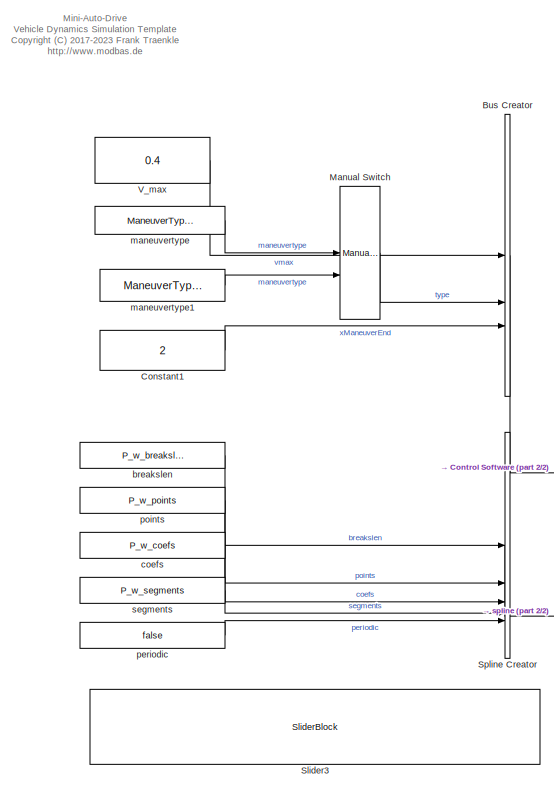
[diagram: root canvas - part 1/2, left side, full height]
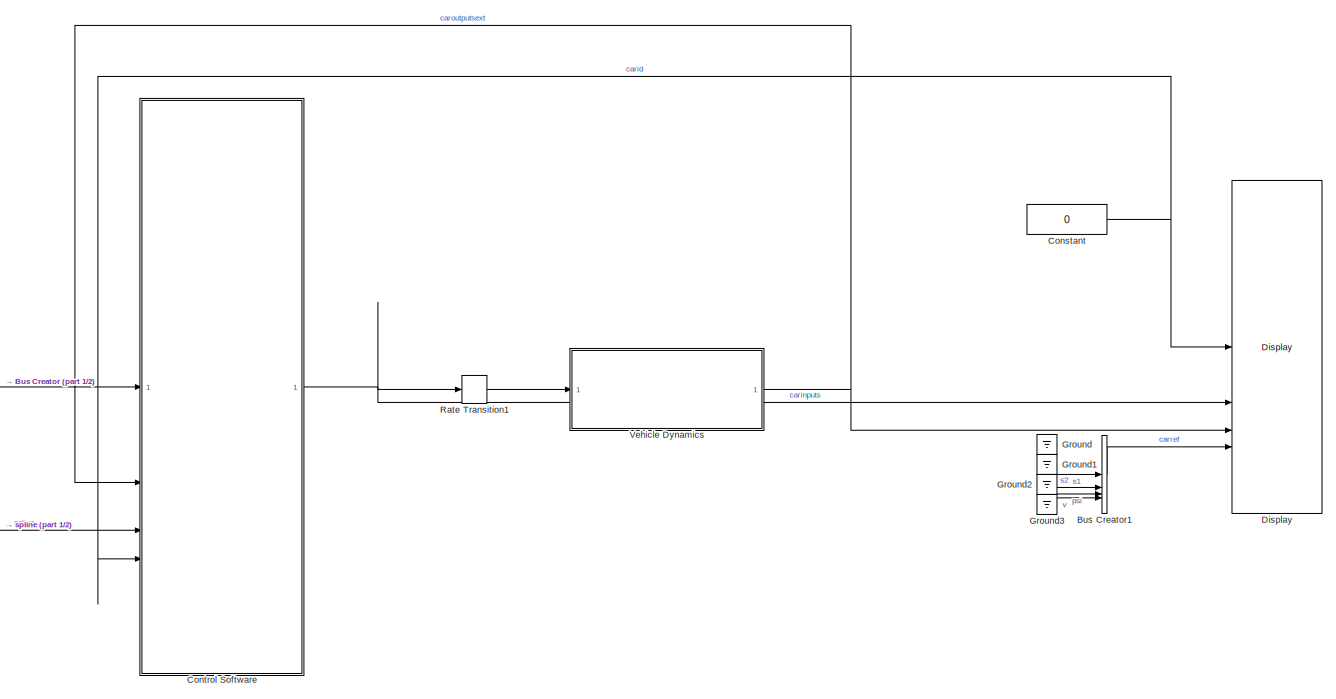
[diagram: root canvas - part 2/2, center side, full height]
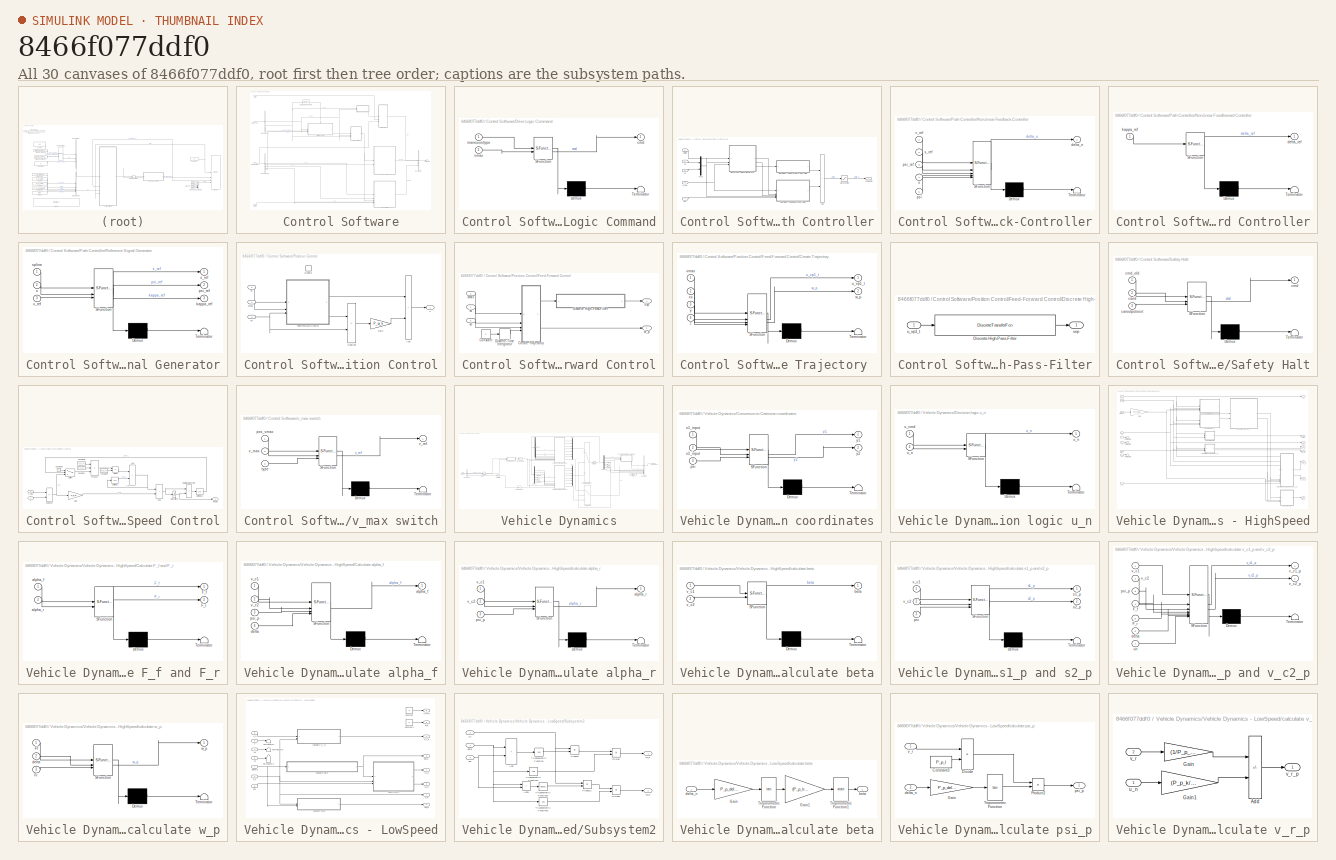
[diagram: thumbnail index - all 30 canvases of the model, root first then tree order]
MODEL slx_8466f077ddf0
KIND model
CONFIG AbsTol = auto
CONFIG EnableMultiTasking = off
CONFIG FixedStep = P_sim_dt
CONFIG InitFcn = s6_data;
CONFIG MaxStep = auto
CONFIG MinStep = auto
CONFIG RelTol = 1e-3
CONFIG SampleTimeConstraint = Unconstrained
CONFIG SolverName = ode4
CONFIG StartTime = 0.0
CONFIG StopTime = inf
BLOCK [BusCreator] Bus Creator
  DisplayOption = bar
  InheritFromInputs = on
  Inputs = 3
BLOCK [BusCreator] Bus Creator1
  DisplayOption = bar
  InheritFromInputs = on
  Inputs = 4
BLOCK [Constant] Constant
  Value = 0
BLOCK [Constant] Constant1
  Value = 2
BLOCK [SubSystem] Control Software
  SystemSampleTime = P_p_TA
  TreatAsAtomicUnit = on
BLOCK [BusCreator] Control Software/Bus Creator
  DisplayOption = bar
  InheritFromInputs = on
  Inputs = 3
BLOCK [BusSelector] Control Software/Bus Selector
  OutputSignals = vmax,type,xManeuverEnd
BLOCK [BusSelector] Control Software/Bus Selector1
  OutputSignals = s1,s2,psi,v,x
BLOCK [Reference] Control Software/Compare To Constant  REF=simulink/Logic and Bit
Operations/Compare
To Constant
  SourceBlock = simulink/Logic and Bit\nOperations/Compare\nTo Constant
  SourceType = Compare To Constant
BLOCK [SubSystem] Control Software/Drive Logic Command
  ErrorFcn = Stateflow.Translate.translate
  PermitHierarchicalResolution = ExplicitOnly
  SFBlockType = MATLAB Function
  TreatAsAtomicUnit = on
BLOCK [Demux] Control Software/Drive Logic Command/ Demux 
  Outputs = 1
BLOCK [S-Function] Control Software/Drive Logic Command/ SFunction 
  EnableBusSupport = on
  FunctionName = sf_sfun
  PortCounts = [2 2]
  SFcnIsStateOwnerBlock = off
  SFunctionDeploymentMode = off
  Tag = Stateflow S-Function 10
BLOCK [Terminator] Control Software/Drive Logic Command/ Terminator 
BLOCK [Outport] Control Software/Drive Logic Command/cmd
BLOCK [Inport] Control Software/Drive Logic Command/maneuvertype
BLOCK [Inport] Control Software/Drive Logic Command/vmax
  Port = 2
BLOCK [SubSystem] Control Software/Path Controller
BLOCK [Sum] Control Software/Path Controller/Add
  IconShape = rectangular
BLOCK [Mux] Control Software/Path Controller/Mux
  DisplayOption = bar
  Inputs = 2
BLOCK [SubSystem] Control Software/Path Controller/Non-linear Feedback-Controller
  ErrorFcn = Stateflow.Translate.translate
  PermitHierarchicalResolution = ExplicitOnly
  SFBlockType = MATLAB Function
  TreatAsAtomicUnit = on
BLOCK [Demux] Control Software/Path Controller/Non-linear Feedback-Controller/ Demux 
  Outputs = 1
BLOCK [S-Function] Control Software/Path Controller/Non-linear Feedback-Controller/ SFunction 
  EnableBusSupport = on
  FunctionName = sf_sfun
  Parameters = P_p_Tw,P_p_l
  PortCounts = [5 2]
  SFcnIsStateOwnerBlock = off
  SFunctionDeploymentMode = off
  Tag = Stateflow S-Function 13
BLOCK [Terminator] Control Software/Path Controller/Non-linear Feedback-Controller/ Terminator 
BLOCK [Outport] Control Software/Path Controller/Non-linear Feedback-Controller/delta_e
BLOCK [Inport] Control Software/Path Controller/Non-linear Feedback-Controller/psi
  Port = 5
BLOCK [Inport] Control Software/Path Controller/Non-linear Feedback-Controller/psi_ref
  Port = 3
BLOCK [Inport] Control Software/Path Controller/Non-linear Feedback-Controller/s
  Port = 4
BLOCK [Inport] Control Software/Path Controller/Non-linear Feedback-Controller/s_ref
  Port = 2
BLOCK [Inport] Control Software/Path Controller/Non-linear Feedback-Controller/v_ref
BLOCK [SubSystem] Control Software/Path Controller/Non-linear Feedforward Controller
  ErrorFcn = Stateflow.Translate.translate
  PermitHierarchicalResolution = ExplicitOnly
  SFBlockType = MATLAB Function
  TreatAsAtomicUnit = on
BLOCK [Demux] Control Software/Path Controller/Non-linear Feedforward Controller/ Demux 
  Outputs = 1
BLOCK [S-Function] Control Software/Path Controller/Non-linear Feedforward Controller/ SFunction 
  EnableBusSupport = on
  FunctionName = sf_sfun
  Parameters = P_p_l
  PortCounts = [1 2]
  SFcnIsStateOwnerBlock = off
  SFunctionDeploymentMode = off
  Tag = Stateflow S-Function 12
BLOCK [Terminator] Control Software/Path Controller/Non-linear Feedforward Controller/ Terminator 
BLOCK [Outport] Control Software/Path Controller/Non-linear Feedforward Controller/delta_ref
BLOCK [Inport] Control Software/Path Controller/Non-linear Feedforward Controller/kappa_ref
BLOCK [SubSystem] Control Software/Path Controller/Reference Signal Generator
  ErrorFcn = Stateflow.Translate.translate
  PermitHierarchicalResolution = ExplicitOnly
  SFBlockType = MATLAB Function
  TreatAsAtomicUnit = on
BLOCK [Demux] Control Software/Path Controller/Reference Signal Generator/ Demux 
  Outputs = 1
BLOCK [S-Function] Control Software/Path Controller/Reference Signal Generator/ SFunction 
  EnableBusSupport = on
  FunctionName = sf_sfun
  Parameters = P_p_Tt
  PortCounts = [3 4]
  SFcnIsStateOwnerBlock = off
  SFunctionDeploymentMode = off
  Tag = Stateflow S-Function 11
BLOCK [Terminator] Control Software/Path Controller/Reference Signal Generator/ Terminator 
BLOCK [Outport] Control Software/Path Controller/Reference Signal Generator/kappa_ref
  Port = 3
BLOCK [Outport] Control Software/Path Controller/Reference Signal Generator/psi_ref
  Port = 2
BLOCK [Inport] Control Software/Path Controller/Reference Signal Generator/s
  Port = 2
BLOCK [Outport] Control Software/Path Controller/Reference Signal Generator/s_ref
BLOCK [Inport] Control Software/Path Controller/Reference Signal Generator/spline
BLOCK [Inport] Control Software/Path Controller/Reference Signal Generator/v_ref
  Port = 3
BLOCK [Saturate] Control Software/Path Controller/Saturation
  LowerLimit = -1
  UpperLimit = 1
BLOCK [Inport] Control Software/Path Controller/psi
  Port = 4
BLOCK [Inport] Control Software/Path Controller/s1
BLOCK [Inport] Control Software/Path Controller/s2
  Port = 2
BLOCK [Inport] Control Software/Path Controller/spline
  Port = 5
BLOCK [Outport] Control Software/Path Controller/steering
BLOCK [Inport] Control Software/Path Controller/v_ref
  Port = 3
BLOCK [SubSystem] Control Software/Position Control
  TreatAsAtomicUnit = on
BLOCK [Sum] Control Software/Position Control/Add
  IconShape = rectangular
BLOCK [EnablePort] Control Software/Position Control/Enable
BLOCK [SubSystem] Control Software/Position Control/Feed-Forward Control
BLOCK [Constant] Control Software/Position Control/Feed-Forward Control/Constant
BLOCK [SubSystem] Control Software/Position Control/Feed-Forward Control/Create Trajectory 
  ErrorFcn = Stateflow.Translate.translate
  PermitHierarchicalResolution = ExplicitOnly
  SFBlockType = MATLAB Function
  TreatAsAtomicUnit = on
BLOCK [Demux] Control Software/Position Control/Feed-Forward Control/Create Trajectory / Demux 
  Outputs = 1
BLOCK [S-Function] Control Software/Position Control/Feed-Forward Control/Create Trajectory / SFunction 
  EnableBusSupport = on
  FunctionName = sf_sfun
  Parameters = P_p_T,P_p_Ti,P_p_Tt,P_p_k,P_p_kr
  PortCounts = [4 3]
  SFcnIsStateOwnerBlock = off
  SFunctionDeploymentMode = off
  Tag = Stateflow S-Function 14
BLOCK [Terminator] Control Software/Position Control/Feed-Forward Control/Create Trajectory / Terminator 
BLOCK [Inport] Control Software/Position Control/Feed-Forward Control/Create Trajectory /t
  Port = 4
BLOCK [Outport] Control Software/Position Control/Feed-Forward Control/Create Trajectory /u_vp1_t
BLOCK [Inport] Control Software/Position Control/Feed-Forward Control/Create Trajectory /vmax
BLOCK [Outport] Control Software/Position Control/Feed-Forward Control/Create Trajectory /w_p
  Port = 2
BLOCK [Inport] Control Software/Position Control/Feed-Forward Control/Create Trajectory /xs
  Port = 2
BLOCK [Inport] Control Software/Position Control/Feed-Forward Control/Create Trajectory /y
  Port = 3
BLOCK [SubSystem] Control Software/Position Control/Feed-Forward Control/Discrete High-Pass-Filter
  TreatAsAtomicUnit = on
BLOCK [DiscreteTransferFcn] Control Software/Position Control/Feed-Forward Control/Discrete High-Pass-Filter/Discrete High-Pass-Filter
  Denominator = [(2*P_p_Ti+P_p_T) (P_p_T-2*P_p_Ti)]
  InputPortMap = u0
  Numerator = [2, -2]
BLOCK [Inport] Control Software/Position Control/Feed-Forward Control/Discrete High-Pass-Filter/u_vp1_t
BLOCK [Outport] Control Software/Position Control/Feed-Forward Control/Discrete High-Pass-Filter/uvp
BLOCK [DiscreteIntegrator] Control Software/Position Control/Feed-Forward Control/Discrete-Time Integrator
  ICPrevOutput = DiscIntNeverNeededParam
  ICPrevScaledInput = DiscIntNeverNeededParam
  InitialConditionSetting = Auto
  SampleTime = -1
BLOCK [Outport] Control Software/Position Control/Feed-Forward Control/uvp
BLOCK [Inport] Control Software/Position Control/Feed-Forward Control/vmax
  Port = 2
BLOCK [Outport] Control Software/Position Control/Feed-Forward Control/w_p
  Port = 2
BLOCK [Inport] Control Software/Position Control/Feed-Forward Control/x0
  Port = 3
BLOCK [Inport] Control Software/Position Control/Feed-Forward Control/xs
BLOCK [Gain] Control Software/Position Control/Gain
  Gain = P_cx_k
BLOCK [Sum] Control Software/Position Control/Subtract
  IconShape = rectangular
  Inputs = +-
BLOCK [Outport] Control Software/Position Control/u
BLOCK [Inport] Control Software/Position Control/vmax
BLOCK [Inport] Control Software/Position Control/x0
  Port = 3
BLOCK [Inport] Control Software/Position Control/xs
  Port = 2
BLOCK [SubSystem] Control Software/Safety Halt
  ErrorFcn = Stateflow.Translate.translate
  PermitHierarchicalResolution = ExplicitOnly
  SFBlockType = MATLAB Function
  TreatAsAtomicUnit = on
BLOCK [Demux] Control Software/Safety Halt/ Demux 
  Outputs = 1
BLOCK [S-Function] Control Software/Safety Halt/ SFunction 
  EnableBusSupport = on
  FunctionName = sf_sfun
  Parameters = CarInputsCmdHalt,a1total,a2total
  PortCounts = [3 2]
  SFcnIsStateOwnerBlock = off
  SFunctionDeploymentMode = off
  Tag = Stateflow S-Function 16
BLOCK [Terminator] Control Software/Safety Halt/ Terminator 
BLOCK [Inport] Control Software/Safety Halt/carid
  Port = 2
BLOCK [Inport] Control Software/Safety Halt/caroutputsext
  Port = 3
BLOCK [Outport] Control Software/Safety Halt/cmd
BLOCK [Inport] Control Software/Safety Halt/cmd_old
BLOCK [SubSystem] Control Software/Speed Control
BLOCK [Sum] Control Software/Speed Control/Add
  IconShape = rectangular
BLOCK [Sum] Control Software/Speed Control/Add1
  IconShape = rectangular
BLOCK [Constant] Control Software/Speed Control/Constant
  Value = P_p_kr
BLOCK [Constant] Control Software/Speed Control/Constant1
  Value = P_p_Ti
  VectorParams1D = off
BLOCK [Constant] Control Software/Speed Control/Constant2
  Value = P_p_TA
  VectorParams1D = off
BLOCK [Constant] Control Software/Speed Control/Constant3
  Value = 0
BLOCK [Product] Control Software/Speed Control/Divide
  Inputs = */
BLOCK [Gain] Control Software/Speed Control/Gain
  Gain = P_p_kr
BLOCK [Product] Control Software/Speed Control/Product
  Inputs = 3
BLOCK [RelationalOperator] Control Software/Speed Control/Relational Operator
  InputSameDT = off
  Operator = ~=
  OutDataTypeStr = boolean
  RndMeth = Simplest
BLOCK [Saturate] Control Software/Speed Control/Saturation1
  LowerLimit = -1
  UpperLimit = 1
BLOCK [Sum] Control Software/Speed Control/Subtract
  IconShape = rectangular
  Inputs = +-
BLOCK [Switch] Control Software/Speed Control/Switch
  Criteria = u2 > Threshold
  InputSameDT = off
  SaturateOnIntegerOverflow = off
BLOCK [UnitDelay] Control Software/Speed Control/Unit Delay
  HasFrameUpgradeWarning = on
  SampleTime = P_p_TA
BLOCK [UnitDelay] Control Software/Speed Control/Unit Delay1
  HasFrameUpgradeWarning = on
  SampleTime = P_p_TA
BLOCK [Outport] Control Software/Speed Control/pedals
BLOCK [Inport] Control Software/Speed Control/v
  Port = 2
BLOCK [Inport] Control Software/Speed Control/v_max
BLOCK [Inport] Control Software/carid
  Port = 4
BLOCK [Outport] Control Software/carinputs
BLOCK [Inport] Control Software/caroutputsext
  Port = 2
BLOCK [Inport] Control Software/maneuver
BLOCK [Inport] Control Software/spline
  Port = 3
BLOCK [SubSystem] Control Software/v_max switch
  ErrorFcn = Stateflow.Translate.translate
  PermitHierarchicalResolution = ExplicitOnly
  SFBlockType = MATLAB Function
  TreatAsAtomicUnit = on
BLOCK [Demux] Control Software/v_max switch/ Demux 
  Outputs = 1
BLOCK [S-Function] Control Software/v_max switch/ SFunction 
  EnableBusSupport = on
  FunctionName = sf_sfun
  PortCounts = [3 2]
  SFcnIsStateOwnerBlock = off
  SFunctionDeploymentMode = off
  Tag = Stateflow S-Function 15
BLOCK [Terminator] Control Software/v_max switch/ Terminator 
BLOCK [Inport] Control Software/v_max switch/pos_vmax
BLOCK [Inport] Control Software/v_max switch/type
  Port = 3
BLOCK [Inport] Control Software/v_max switch/v_max
  Port = 2
BLOCK [Outport] Control Software/v_max switch/v_ref
BLOCK [Reference] Display  REF=mad_lib_template/Display  (lib defined in slx_e896f93816e2)
  SourceBlock = mad_lib_template/Display
  SourceType = SubSystem
BLOCK [Ground] Ground
BLOCK [Ground] Ground1
BLOCK [Ground] Ground2
BLOCK [Ground] Ground3
BLOCK [ManualSwitch] Manual Switch
BLOCK [RateTransition] Rate Transition1
BLOCK [SliderBlock] Slider3
  ScaleMax = 2.50
  ScaleMin = -2.50
  TickInterval = 0.5
BLOCK [BusCreator] Spline Creator
  DisplayOption = bar
  InheritFromInputs = on
  Inputs = breakslen,points,coefs,segments,periodic
  OutDataTypeStr = Bus: SPLINE
BLOCK [Constant] V_max
  Value = 0.4
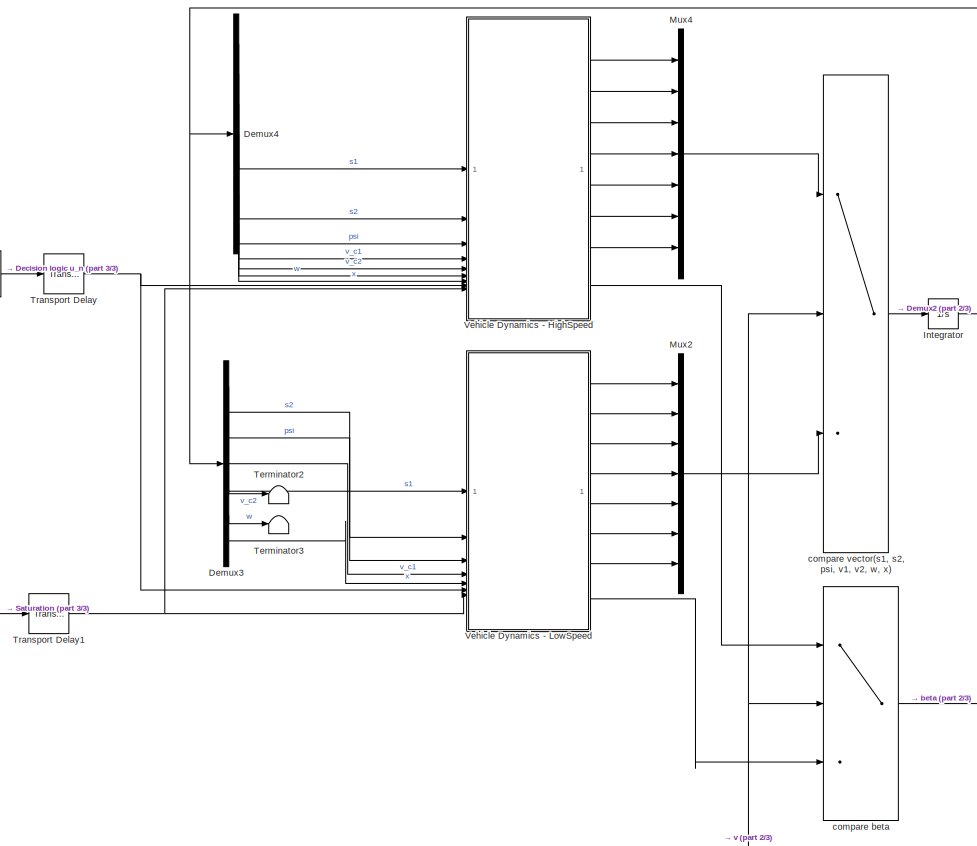
[diagram: Vehicle Dynamics - part 1/3, center side, full height]
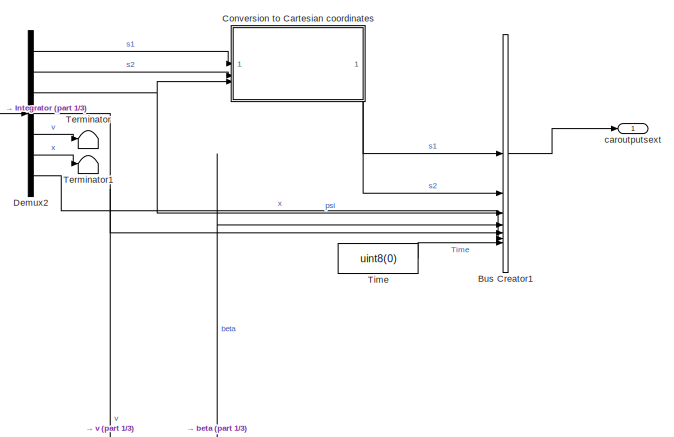
[diagram: Vehicle Dynamics - part 2/3, middle right region]
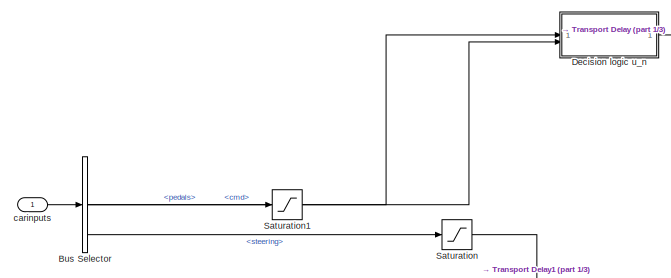
[diagram: Vehicle Dynamics - part 3/3, middle left region]
BLOCK [SubSystem] Vehicle Dynamics
BLOCK [BusCreator] Vehicle Dynamics/Bus Creator1
  DisplayOption = bar
  InheritFromInputs = on
  Inputs = 7
  OutDataTypeStr = Bus: CAROUTPUTSEXT
BLOCK [BusSelector] Vehicle Dynamics/Bus Selector
  OutputSignals = cmd,pedals,steering
BLOCK [SubSystem] Vehicle Dynamics/Conversion to Cartesian coordinates
  ErrorFcn = Stateflow.Translate.translate
  NameLocation = top
  PermitHierarchicalResolution = ExplicitOnly
  SFBlockType = MATLAB Function
  TreatAsAtomicUnit = on
BLOCK [Demux] Vehicle Dynamics/Conversion to Cartesian coordinates/ Demux 
  Outputs = 1
BLOCK [S-Function] Vehicle Dynamics/Conversion to Cartesian coordinates/ SFunction 
  EnableBusSupport = on
  FunctionName = sf_sfun
  Parameters = P_p_lr
  PortCounts = [3 3]
  SFcnIsStateOwnerBlock = off
  SFunctionDeploymentMode = off
  Tag = Stateflow S-Function 2
BLOCK [Terminator] Vehicle Dynamics/Conversion to Cartesian coordinates/ Terminator 
BLOCK [Inport] Vehicle Dynamics/Conversion to Cartesian coordinates/psi
  Port = 3
BLOCK [Inport] Vehicle Dynamics/Conversion to Cartesian coordinates/s1_input
BLOCK [Inport] Vehicle Dynamics/Conversion to Cartesian coordinates/s2_input
  Port = 2
BLOCK [Outport] Vehicle Dynamics/Conversion to Cartesian coordinates/y1
BLOCK [Outport] Vehicle Dynamics/Conversion to Cartesian coordinates/y2
  Port = 2
BLOCK [SubSystem] Vehicle Dynamics/Decision logic u_n
  ErrorFcn = Stateflow.Translate.translate
  LibrarySourceBlock = simulink/User-Defined\nFunctions/MATLAB Function
  PermitHierarchicalResolution = ExplicitOnly
  SFBlockType = MATLAB Function
  TreatAsAtomicUnit = on
BLOCK [Demux] Vehicle Dynamics/Decision logic u_n/ Demux 
  Outputs = 1
BLOCK [S-Function] Vehicle Dynamics/Decision logic u_n/ SFunction 
  EnableBusSupport = on
  FunctionName = sf_sfun
  Parameters = CarInputsCmdForward,CarInputsCmdHalt,CarInputsCmdReverse
  PortCounts = [2 2]
  SFcnIsStateOwnerBlock = off
  SFunctionDeploymentMode = off
  Tag = Stateflow S-Function 1
BLOCK [Terminator] Vehicle Dynamics/Decision logic u_n/ Terminator 
BLOCK [Inport] Vehicle Dynamics/Decision logic u_n/u_cmd
BLOCK [Outport] Vehicle Dynamics/Decision logic u_n/u_n
BLOCK [Inport] Vehicle Dynamics/Decision logic u_n/u_n 
  Port = 2
BLOCK [Demux] Vehicle Dynamics/Demux2
  Outputs = 7
BLOCK [Demux] Vehicle Dynamics/Demux3
  Outputs = 7
BLOCK [Demux] Vehicle Dynamics/Demux4
  Outputs = 7
BLOCK [Integrator] Vehicle Dynamics/Integrator
  InitialCondition = [P_p_s1_start; P_p_s2_start; 0; 0; 0; 0; 0]
BLOCK [Mux] Vehicle Dynamics/Mux2
  DisplayOption = bar
  Inputs = 7
BLOCK [Mux] Vehicle Dynamics/Mux4
  DisplayOption = bar
  Inputs = 7
BLOCK [Saturate] Vehicle Dynamics/Saturation
  LowerLimit = -1
  UpperLimit = 1
BLOCK [Saturate] Vehicle Dynamics/Saturation1
  LowerLimit = -1
  UpperLimit = 1
BLOCK [Terminator] Vehicle Dynamics/Terminator
BLOCK [Terminator] Vehicle Dynamics/Terminator1
BLOCK [Terminator] Vehicle Dynamics/Terminator2
BLOCK [Terminator] Vehicle Dynamics/Terminator3
BLOCK [Constant] Vehicle Dynamics/Time
  Value = uint8(0)
BLOCK [TransportDelay] Vehicle Dynamics/Transport Delay
  DelayTime = P_p_Tt
BLOCK [TransportDelay] Vehicle Dynamics/Transport Delay1
  DelayTime = P_p_Tt
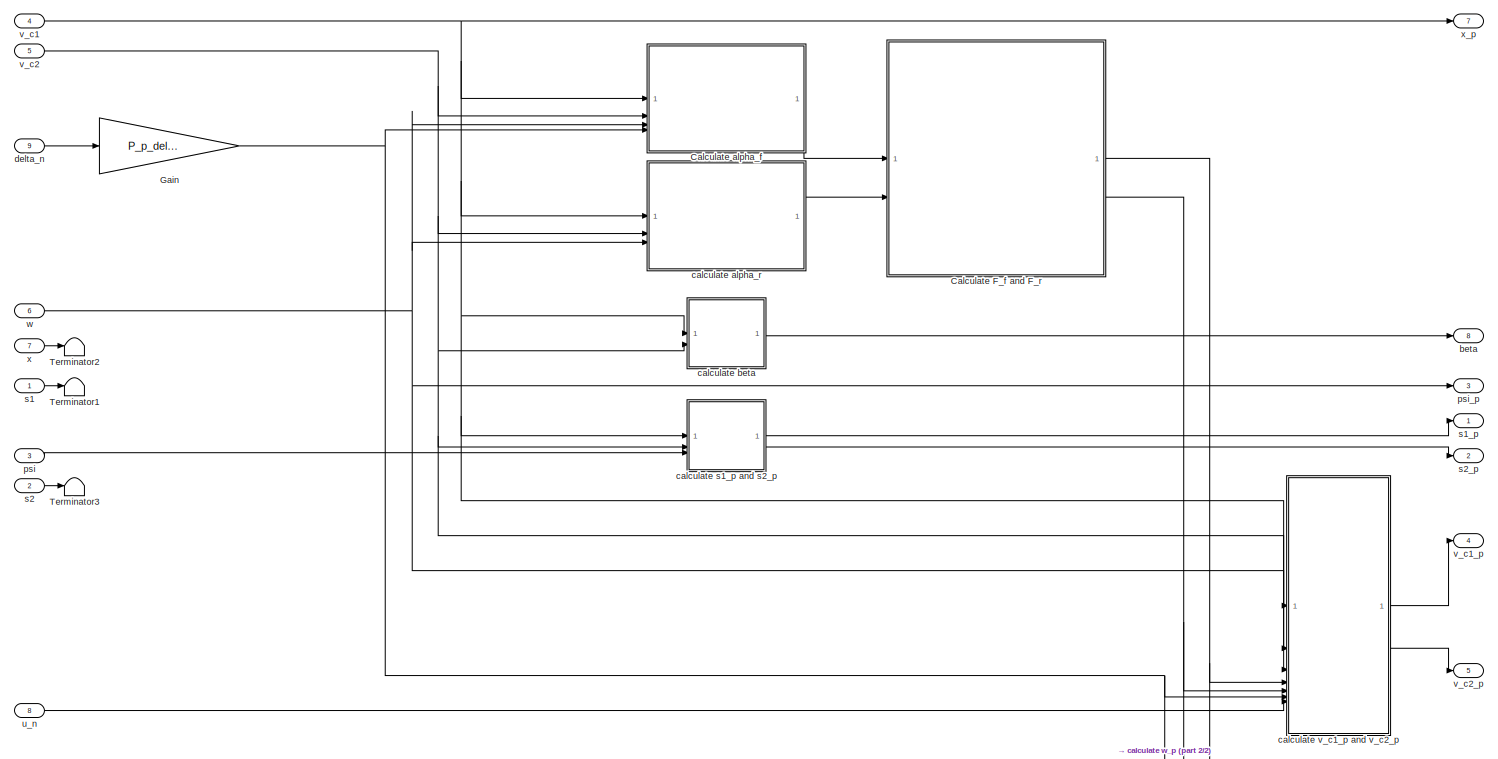
[diagram: Vehicle Dynamics/Vehicle Dynamics - HighSpeed - part 1/2, most of the canvas]
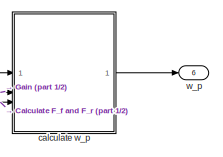
[diagram: Vehicle Dynamics/Vehicle Dynamics - HighSpeed - part 2/2, bottom right region]
BLOCK [SubSystem] Vehicle Dynamics/Vehicle Dynamics - HighSpeed
BLOCK [SubSystem] Vehicle Dynamics/Vehicle Dynamics - HighSpeed/Calculate F_f and F_r
  ErrorFcn = Stateflow.Translate.translate
  LibrarySourceBlock = simulink/User-Defined\nFunctions/MATLAB Function
  PermitHierarchicalResolution = ExplicitOnly
  SFBlockType = MATLAB Function
  TreatAsAtomicUnit = on
BLOCK [Demux] Vehicle Dynamics/Vehicle Dynamics - HighSpeed/Calculate F_f and F_r/ Demux 
  Outputs = 1
BLOCK [S-Function] Vehicle Dynamics/Vehicle Dynamics - HighSpeed/Calculate F_f and F_r/ SFunction 
  EnableBusSupport = on
  FunctionName = sf_sfun
  Parameters = P_p_Bf,P_p_Br,P_p_Cf,P_p_Cr,P_p_Df,P_p_Dr,P_p_Ef,P_p_Er
  PortCounts = [2 3]
  SFcnIsStateOwnerBlock = off
  SFunctionDeploymentMode = off
  Tag = Stateflow S-Function 5
BLOCK [Terminator] Vehicle Dynamics/Vehicle Dynamics - HighSpeed/Calculate F_f and F_r/ Terminator 
BLOCK [Outport] Vehicle Dynamics/Vehicle Dynamics - HighSpeed/Calculate F_f and F_r/F_f
BLOCK [Outport] Vehicle Dynamics/Vehicle Dynamics - HighSpeed/Calculate F_f and F_r/F_r
  Port = 2
BLOCK [Inport] Vehicle Dynamics/Vehicle Dynamics - HighSpeed/Calculate F_f and F_r/alpha_f
BLOCK [Inport] Vehicle Dynamics/Vehicle Dynamics - HighSpeed/Calculate F_f and F_r/alpha_r
  Port = 2
BLOCK [SubSystem] Vehicle Dynamics/Vehicle Dynamics - HighSpeed/Calculate alpha_f
  ErrorFcn = Stateflow.Translate.translate
  LibrarySourceBlock = simulink/User-Defined\nFunctions/MATLAB Function
  NameLocation = top
  PermitHierarchicalResolution = ExplicitOnly
  SFBlockType = MATLAB Function
  TreatAsAtomicUnit = on
BLOCK [Demux] Vehicle Dynamics/Vehicle Dynamics - HighSpeed/Calculate alpha_f/ Demux 
  Outputs = 1
BLOCK [S-Function] Vehicle Dynamics/Vehicle Dynamics - HighSpeed/Calculate alpha_f/ SFunction 
  EnableBusSupport = on
  FunctionName = sf_sfun
  Parameters = P_p_lf
  PortCounts = [4 2]
  SFcnIsStateOwnerBlock = off
  SFunctionDeploymentMode = off
  Tag = Stateflow S-Function 4
BLOCK [Terminator] Vehicle Dynamics/Vehicle Dynamics - HighSpeed/Calculate alpha_f/ Terminator 
BLOCK [Outport] Vehicle Dynamics/Vehicle Dynamics - HighSpeed/Calculate alpha_f/alpha_f
BLOCK [Inport] Vehicle Dynamics/Vehicle Dynamics - HighSpeed/Calculate alpha_f/delta
  Port = 4
BLOCK [Inport] Vehicle Dynamics/Vehicle Dynamics - HighSpeed/Calculate alpha_f/psi_p
  Port = 3
BLOCK [Inport] Vehicle Dynamics/Vehicle Dynamics - HighSpeed/Calculate alpha_f/v_c1
BLOCK [Inport] Vehicle Dynamics/Vehicle Dynamics - HighSpeed/Calculate alpha_f/v_c2
  Port = 2
BLOCK [Gain] Vehicle Dynamics/Vehicle Dynamics - HighSpeed/Gain
  Gain = P_p_delta_max
BLOCK [Terminator] Vehicle Dynamics/Vehicle Dynamics - HighSpeed/Terminator1
BLOCK [Terminator] Vehicle Dynamics/Vehicle Dynamics - HighSpeed/Terminator2
BLOCK [Terminator] Vehicle Dynamics/Vehicle Dynamics - HighSpeed/Terminator3
BLOCK [Outport] Vehicle Dynamics/Vehicle Dynamics - HighSpeed/beta
  Port = 8
  VectorParamsAs1DForOutWhenUnconnected = off
BLOCK [SubSystem] Vehicle Dynamics/Vehicle Dynamics - HighSpeed/calculate alpha_r
  ErrorFcn = Stateflow.Translate.translate
  LibrarySourceBlock = simulink/User-Defined\nFunctions/MATLAB Function
  PermitHierarchicalResolution = ExplicitOnly
  SFBlockType = MATLAB Function
  TreatAsAtomicUnit = on
BLOCK [Demux] Vehicle Dynamics/Vehicle Dynamics - HighSpeed/calculate alpha_r/ Demux 
  Outputs = 1
BLOCK [S-Function] Vehicle Dynamics/Vehicle Dynamics - HighSpeed/calculate alpha_r/ SFunction 
  EnableBusSupport = on
  FunctionName = sf_sfun
  Parameters = P_p_lr
  PortCounts = [3 2]
  SFcnIsStateOwnerBlock = off
  SFunctionDeploymentMode = off
  Tag = Stateflow S-Function 3
BLOCK [Terminator] Vehicle Dynamics/Vehicle Dynamics - HighSpeed/calculate alpha_r/ Terminator 
BLOCK [Outport] Vehicle Dynamics/Vehicle Dynamics - HighSpeed/calculate alpha_r/alpha_r
BLOCK [Inport] Vehicle Dynamics/Vehicle Dynamics - HighSpeed/calculate alpha_r/psi_p
  Port = 3
BLOCK [Inport] Vehicle Dynamics/Vehicle Dynamics - HighSpeed/calculate alpha_r/v_c1
BLOCK [Inport] Vehicle Dynamics/Vehicle Dynamics - HighSpeed/calculate alpha_r/v_c2
  Port = 2
BLOCK [SubSystem] Vehicle Dynamics/Vehicle Dynamics - HighSpeed/calculate beta
  ErrorFcn = Stateflow.Translate.translate
  LibrarySourceBlock = simulink/User-Defined\nFunctions/MATLAB Function
  PermitHierarchicalResolution = ExplicitOnly
  SFBlockType = MATLAB Function
  TreatAsAtomicUnit = on
BLOCK [Demux] Vehicle Dynamics/Vehicle Dynamics - HighSpeed/calculate beta/ Demux 
  Outputs = 1
BLOCK [S-Function] Vehicle Dynamics/Vehicle Dynamics - HighSpeed/calculate beta/ SFunction 
  EnableBusSupport = on
  FunctionName = sf_sfun
  PortCounts = [2 2]
  SFcnIsStateOwnerBlock = off
  SFunctionDeploymentMode = off
  Tag = Stateflow S-Function 6
BLOCK [Terminator] Vehicle Dynamics/Vehicle Dynamics - HighSpeed/calculate beta/ Terminator 
BLOCK [Outport] Vehicle Dynamics/Vehicle Dynamics - HighSpeed/calculate beta/beta
BLOCK [Inport] Vehicle Dynamics/Vehicle Dynamics - HighSpeed/calculate beta/v_c1
BLOCK [Inport] Vehicle Dynamics/Vehicle Dynamics - HighSpeed/calculate beta/v_c2
  Port = 2
BLOCK [SubSystem] Vehicle Dynamics/Vehicle Dynamics - HighSpeed/calculate s1_p and s2_p
  ErrorFcn = Stateflow.Translate.translate
  LibrarySourceBlock = simulink/User-Defined\nFunctions/MATLAB Function
  PermitHierarchicalResolution = ExplicitOnly
  SFBlockType = MATLAB Function
  TreatAsAtomicUnit = on
BLOCK [Demux] Vehicle Dynamics/Vehicle Dynamics - HighSpeed/calculate s1_p and s2_p/ Demux 
  Outputs = 1
BLOCK [S-Function] Vehicle Dynamics/Vehicle Dynamics - HighSpeed/calculate s1_p and s2_p/ SFunction 
  EnableBusSupport = on
  FunctionName = sf_sfun
  PortCounts = [3 3]
  SFcnIsStateOwnerBlock = off
  SFunctionDeploymentMode = off
  Tag = Stateflow S-Function 7
BLOCK [Terminator] Vehicle Dynamics/Vehicle Dynamics - HighSpeed/calculate s1_p and s2_p/ Terminator 
BLOCK [Inport] Vehicle Dynamics/Vehicle Dynamics - HighSpeed/calculate s1_p and s2_p/psi
  Port = 3
BLOCK [Outport] Vehicle Dynamics/Vehicle Dynamics - HighSpeed/calculate s1_p and s2_p/s1_p
BLOCK [Outport] Vehicle Dynamics/Vehicle Dynamics - HighSpeed/calculate s1_p and s2_p/s2_p
  Port = 2
BLOCK [Inport] Vehicle Dynamics/Vehicle Dynamics - HighSpeed/calculate s1_p and s2_p/v_c1
BLOCK [Inport] Vehicle Dynamics/Vehicle Dynamics - HighSpeed/calculate s1_p and s2_p/v_c2
  Port = 2
BLOCK [SubSystem] Vehicle Dynamics/Vehicle Dynamics - HighSpeed/calculate v_c1_p and v_c2_p
  ErrorFcn = Stateflow.Translate.translate
  LibrarySourceBlock = simulink/User-Defined\nFunctions/MATLAB Function
  PermitHierarchicalResolution = ExplicitOnly
  SFBlockType = MATLAB Function
  TreatAsAtomicUnit = on
BLOCK [Demux] Vehicle Dynamics/Vehicle Dynamics - HighSpeed/calculate v_c1_p and v_c2_p/ Demux 
  Outputs = 1
BLOCK [S-Function] Vehicle Dynamics/Vehicle Dynamics - HighSpeed/calculate v_c1_p and v_c2_p/ SFunction 
  EnableBusSupport = on
  FunctionName = sf_sfun
  Parameters = P_p_T,P_p_k,P_p_m
  PortCounts = [7 3]
  SFcnIsStateOwnerBlock = off
  SFunctionDeploymentMode = off
  Tag = Stateflow S-Function 8
BLOCK [Terminator] Vehicle Dynamics/Vehicle Dynamics - HighSpeed/calculate v_c1_p and v_c2_p/ Terminator 
BLOCK [Inport] Vehicle Dynamics/Vehicle Dynamics - HighSpeed/calculate v_c1_p and v_c2_p/F_f
  Port = 4
BLOCK [Inport] Vehicle Dynamics/Vehicle Dynamics - HighSpeed/calculate v_c1_p and v_c2_p/F_r
  Port = 5
BLOCK [Inport] Vehicle Dynamics/Vehicle Dynamics - HighSpeed/calculate v_c1_p and v_c2_p/delta
  Port = 6
BLOCK [Inport] Vehicle Dynamics/Vehicle Dynamics - HighSpeed/calculate v_c1_p and v_c2_p/psi_p
  Port = 3
BLOCK [Inport] Vehicle Dynamics/Vehicle Dynamics - HighSpeed/calculate v_c1_p and v_c2_p/un
  Port = 7
BLOCK [Inport] Vehicle Dynamics/Vehicle Dynamics - HighSpeed/calculate v_c1_p and v_c2_p/v_c1
BLOCK [Outport] Vehicle Dynamics/Vehicle Dynamics - HighSpeed/calculate v_c1_p and v_c2_p/v_c1_p
BLOCK [Inport] Vehicle Dynamics/Vehicle Dynamics - HighSpeed/calculate v_c1_p and v_c2_p/v_c2
  Port = 2
BLOCK [Outport] Vehicle Dynamics/Vehicle Dynamics - HighSpeed/calculate v_c1_p and v_c2_p/v_c2_p
  Port = 2
BLOCK [SubSystem] Vehicle Dynamics/Vehicle Dynamics - HighSpeed/calculate w_p
  ErrorFcn = Stateflow.Translate.translate
  LibrarySourceBlock = simulink/User-Defined\nFunctions/MATLAB Function
  PermitHierarchicalResolution = ExplicitOnly
  SFBlockType = MATLAB Function
  TreatAsAtomicUnit = on
BLOCK [Demux] Vehicle Dynamics/Vehicle Dynamics - HighSpeed/calculate w_p/ Demux 
  Outputs = 1
BLOCK [S-Function] Vehicle Dynamics/Vehicle Dynamics - HighSpeed/calculate w_p/ SFunction 
  EnableBusSupport = on
  FunctionName = sf_sfun
  Parameters = P_p_J,P_p_lf,P_p_lr
  PortCounts = [3 2]
  SFcnIsStateOwnerBlock = off
  SFunctionDeploymentMode = off
  Tag = Stateflow S-Function 9
BLOCK [Terminator] Vehicle Dynamics/Vehicle Dynamics - HighSpeed/calculate w_p/ Terminator 
BLOCK [Inport] Vehicle Dynamics/Vehicle Dynamics - HighSpeed/calculate w_p/Ff
BLOCK [Inport] Vehicle Dynamics/Vehicle Dynamics - HighSpeed/calculate w_p/Fr
  Port = 3
BLOCK [Inport] Vehicle Dynamics/Vehicle Dynamics - HighSpeed/calculate w_p/delta
  Port = 2
BLOCK [Outport] Vehicle Dynamics/Vehicle Dynamics - HighSpeed/calculate w_p/w_p
BLOCK [Inport] Vehicle Dynamics/Vehicle Dynamics - HighSpeed/delta_n
  Port = 9
BLOCK [Inport] Vehicle Dynamics/Vehicle Dynamics - HighSpeed/psi
  Port = 3
BLOCK [Outport] Vehicle Dynamics/Vehicle Dynamics - HighSpeed/psi_p
  Port = 3
  VectorParamsAs1DForOutWhenUnconnected = off
BLOCK [Inport] Vehicle Dynamics/Vehicle Dynamics - HighSpeed/s1
BLOCK [Outport] Vehicle Dynamics/Vehicle Dynamics - HighSpeed/s1_p
  VectorParamsAs1DForOutWhenUnconnected = off
BLOCK [Inport] Vehicle Dynamics/Vehicle Dynamics - HighSpeed/s2
  Port = 2
BLOCK [Outport] Vehicle Dynamics/Vehicle Dynamics - HighSpeed/s2_p
  Port = 2
  VectorParamsAs1DForOutWhenUnconnected = off
BLOCK [Inport] Vehicle Dynamics/Vehicle Dynamics - HighSpeed/u_n
  Port = 8
BLOCK [Inport] Vehicle Dynamics/Vehicle Dynamics - HighSpeed/v_c1
  Port = 4
BLOCK [Outport] Vehicle Dynamics/Vehicle Dynamics - HighSpeed/v_c1_p
  Port = 4
  VectorParamsAs1DForOutWhenUnconnected = off
BLOCK [Inport] Vehicle Dynamics/Vehicle Dynamics - HighSpeed/v_c2
  Port = 5
BLOCK [Outport] Vehicle Dynamics/Vehicle Dynamics - HighSpeed/v_c2_p
  Port = 5
  VectorParamsAs1DForOutWhenUnconnected = off
BLOCK [Inport] Vehicle Dynamics/Vehicle Dynamics - HighSpeed/w
  Port = 6
BLOCK [Outport] Vehicle Dynamics/Vehicle Dynamics - HighSpeed/w_p
  Port = 6
  VectorParamsAs1DForOutWhenUnconnected = off
BLOCK [Inport] Vehicle Dynamics/Vehicle Dynamics - HighSpeed/x
  Port = 7
BLOCK [Outport] Vehicle Dynamics/Vehicle Dynamics - HighSpeed/x_p
  Port = 7
  VectorParamsAs1DForOutWhenUnconnected = off
BLOCK [SubSystem] Vehicle Dynamics/Vehicle Dynamics - LowSpeed
BLOCK [Constant] Vehicle Dynamics/Vehicle Dynamics - LowSpeed/Constant
  Value = 0
BLOCK [Constant] Vehicle Dynamics/Vehicle Dynamics - LowSpeed/Constant1
  Value = 0
BLOCK [SubSystem] Vehicle Dynamics/Vehicle Dynamics - LowSpeed/Subsystem2
BLOCK [Sum] Vehicle Dynamics/Vehicle Dynamics - LowSpeed/Subsystem2/Add
  IconShape = rectangular
BLOCK [Sum] Vehicle Dynamics/Vehicle Dynamics - LowSpeed/Subsystem2/Add1
  IconShape = rectangular
BLOCK [Product] Vehicle Dynamics/Vehicle Dynamics - LowSpeed/Subsystem2/Divide
  Inputs = */
BLOCK [Product] Vehicle Dynamics/Vehicle Dynamics - LowSpeed/Subsystem2/Divide1
  Inputs = */
BLOCK [Product] Vehicle Dynamics/Vehicle Dynamics - LowSpeed/Subsystem2/Product
BLOCK [Product] Vehicle Dynamics/Vehicle Dynamics - LowSpeed/Subsystem2/Product1
BLOCK [Trigonometry] Vehicle Dynamics/Vehicle Dynamics - LowSpeed/Subsystem2/Trigonometric Function
  Operator = cos
BLOCK [Trigonometry] Vehicle Dynamics/Vehicle Dynamics - LowSpeed/Subsystem2/Trigonometric Function1
  Operator = cos
BLOCK [Trigonometry] Vehicle Dynamics/Vehicle Dynamics - LowSpeed/Subsystem2/Trigonometric Function2
BLOCK [Trigonometry] Vehicle Dynamics/Vehicle Dynamics - LowSpeed/Subsystem2/Trigonometric Function3
  Operator = cos
BLOCK [Inport] Vehicle Dynamics/Vehicle Dynamics - LowSpeed/Subsystem2/beta
BLOCK [Inport] Vehicle Dynamics/Vehicle Dynamics - LowSpeed/Subsystem2/psi
  Port = 3
BLOCK [Outport] Vehicle Dynamics/Vehicle Dynamics - LowSpeed/Subsystem2/s1_p
  VectorParamsAs1DForOutWhenUnconnected = off
BLOCK [Outport] Vehicle Dynamics/Vehicle Dynamics - LowSpeed/Subsystem2/s2_p
  Port = 2
  VectorParamsAs1DForOutWhenUnconnected = off
BLOCK [Inport] Vehicle Dynamics/Vehicle Dynamics - LowSpeed/Subsystem2/v_r
  Port = 2
BLOCK [Terminator] Vehicle Dynamics/Vehicle Dynamics - LowSpeed/Terminator1
BLOCK [Terminator] Vehicle Dynamics/Vehicle Dynamics - LowSpeed/Terminator3
BLOCK [Terminator] Vehicle Dynamics/Vehicle Dynamics - LowSpeed/Terminator4
BLOCK [Outport] Vehicle Dynamics/Vehicle Dynamics - LowSpeed/beta
  Port = 8
  VectorParamsAs1DForOutWhenUnconnected = off
BLOCK [SubSystem] Vehicle Dynamics/Vehicle Dynamics - LowSpeed/calculate beta
BLOCK [Gain] Vehicle Dynamics/Vehicle Dynamics - LowSpeed/calculate beta/Gain
  Gain = P_p_delta_max
BLOCK [Gain] Vehicle Dynamics/Vehicle Dynamics - LowSpeed/calculate beta/Gain1
  Gain = (P_p_lr/P_p_l)
BLOCK [Trigonometry] Vehicle Dynamics/Vehicle Dynamics - LowSpeed/calculate beta/Trigonometric Function
  Operator = tan
BLOCK [Trigonometry] Vehicle Dynamics/Vehicle Dynamics - LowSpeed/calculate beta/Trigonometric Function1
  Operator = atan
BLOCK [Outport] Vehicle Dynamics/Vehicle Dynamics - LowSpeed/calculate beta/beta
  VectorParamsAs1DForOutWhenUnconnected = off
BLOCK [Inport] Vehicle Dynamics/Vehicle Dynamics - LowSpeed/calculate beta/delta_n
BLOCK [SubSystem] Vehicle Dynamics/Vehicle Dynamics - LowSpeed/calculate psi_p
BLOCK [Constant] Vehicle Dynamics/Vehicle Dynamics - LowSpeed/calculate psi_p/Constant3
  Value = P_p_l
BLOCK [Product] Vehicle Dynamics/Vehicle Dynamics - LowSpeed/calculate psi_p/Divide
  Inputs = */
BLOCK [Gain] Vehicle Dynamics/Vehicle Dynamics - LowSpeed/calculate psi_p/Gain
  Gain = P_p_delta_max
BLOCK [Product] Vehicle Dynamics/Vehicle Dynamics - LowSpeed/calculate psi_p/Product2
BLOCK [Trigonometry] Vehicle Dynamics/Vehicle Dynamics - LowSpeed/calculate psi_p/Trigonometric Function
  Operator = tan
BLOCK [Inport] Vehicle Dynamics/Vehicle Dynamics - LowSpeed/calculate psi_p/delta_n
  Port = 2
BLOCK [Outport] Vehicle Dynamics/Vehicle Dynamics - LowSpeed/calculate psi_p/psi_p
  VectorParamsAs1DForOutWhenUnconnected = off
BLOCK [Inport] Vehicle Dynamics/Vehicle Dynamics - LowSpeed/calculate psi_p/v_r
BLOCK [SubSystem] Vehicle Dynamics/Vehicle Dynamics - LowSpeed/calculate v_r_p
BLOCK [Sum] Vehicle Dynamics/Vehicle Dynamics - LowSpeed/calculate v_r_p/Add
  IconShape = rectangular
  Inputs = -+
BLOCK [Gain] Vehicle Dynamics/Vehicle Dynamics - LowSpeed/calculate v_r_p/Gain
  Gain = (1/P_p_T)
BLOCK [Gain] Vehicle Dynamics/Vehicle Dynamics - LowSpeed/calculate v_r_p/Gain1
  Gain = (P_p_k/P_p_T)
BLOCK [Inport] Vehicle Dynamics/Vehicle Dynamics - LowSpeed/calculate v_r_p/u_n
BLOCK [Inport] Vehicle Dynamics/Vehicle Dynamics - LowSpeed/calculate v_r_p/v_r
  Port = 2
BLOCK [Outport] Vehicle Dynamics/Vehicle Dynamics - LowSpeed/calculate v_r_p/v_r_p
  VectorParamsAs1DForOutWhenUnconnected = off
BLOCK [Inport] Vehicle Dynamics/Vehicle Dynamics - LowSpeed/delta_n
  Port = 7
BLOCK [Inport] Vehicle Dynamics/Vehicle Dynamics - LowSpeed/psi
  Port = 3
BLOCK [Outport] Vehicle Dynamics/Vehicle Dynamics - LowSpeed/psi_p
  Port = 3
  VectorParamsAs1DForOutWhenUnconnected = off
BLOCK [Inport] Vehicle Dynamics/Vehicle Dynamics - LowSpeed/s1
BLOCK [Outport] Vehicle Dynamics/Vehicle Dynamics - LowSpeed/s1_p
  VectorParamsAs1DForOutWhenUnconnected = off
BLOCK [Inport] Vehicle Dynamics/Vehicle Dynamics - LowSpeed/s2
  Port = 2
BLOCK [Outport] Vehicle Dynamics/Vehicle Dynamics - LowSpeed/s2_p
  Port = 2
  VectorParamsAs1DForOutWhenUnconnected = off
BLOCK [Inport] Vehicle Dynamics/Vehicle Dynamics - LowSpeed/u_n
  Port = 6
BLOCK [Outport] Vehicle Dynamics/Vehicle Dynamics - LowSpeed/v_c2_p
  Port = 5
  VectorParamsAs1DForOutWhenUnconnected = off
BLOCK [Inport] Vehicle Dynamics/Vehicle Dynamics - LowSpeed/v_r
  Port = 4
BLOCK [Outport] Vehicle Dynamics/Vehicle Dynamics - LowSpeed/v_r_p
  Port = 4
  VectorParamsAs1DForOutWhenUnconnected = off
BLOCK [Outport] Vehicle Dynamics/Vehicle Dynamics - LowSpeed/w_p
  Port = 6
  VectorParamsAs1DForOutWhenUnconnected = off
BLOCK [Inport] Vehicle Dynamics/Vehicle Dynamics - LowSpeed/x
  Port = 5
BLOCK [Outport] Vehicle Dynamics/Vehicle Dynamics - LowSpeed/x_p
  Port = 7
  VectorParamsAs1DForOutWhenUnconnected = off
BLOCK [Inport] Vehicle Dynamics/carinputs
BLOCK [Outport] Vehicle Dynamics/caroutputsext
  VectorParamsAs1DForOutWhenUnconnected = off
BLOCK [Switch] Vehicle Dynamics/compare beta
  InputSameDT = off
  SaturateOnIntegerOverflow = off
  Threshold = 0.2
BLOCK [Switch] Vehicle Dynamics/compare vector(s1, s2, psi, v1, v2, w, x)
  InputSameDT = off
  SaturateOnIntegerOverflow = off
  Threshold = 0.2
BLOCK [Constant] breakslen
  Value = P_w_breakslen
BLOCK [Constant] coefs
  Value = P_w_coefs
BLOCK [Constant] maneuvertype
  SampleTime = -1
  Value = ManeuverTypePathFollow
BLOCK [Constant] maneuvertype1
  SampleTime = -1
  Value = ManeuverTypePark
BLOCK [Constant] periodic
  Value = false
BLOCK [Constant] points
  Value = P_w_points
BLOCK [Constant] segments
  Value = P_w_segments
ANNOTATION (root): Mini-Auto-Drive Vehicle Dynamics Simulation Template <copyright redacted>
LINE Bus Creator1:1 -> Display:4
LINE Bus Creator:1 -> Control Software:1
LINE Constant1:1 -> Bus Creator:3
NET Constant:1 -> Control Software:4, Display:1
LINE Control Software/Bus Creator:1 -> Control Software/carinputs:1
LINE Control Software/Bus Selector1:1 -> Control Software/Path Controller:1
LINE Control Software/Bus Selector1:2 -> Control Software/Path Controller:2
LINE Control Software/Bus Selector1:3 -> Control Software/Path Controller:4
LINE Control Software/Bus Selector1:4 -> Control Software/Speed Control:2
LINE Control Software/Bus Selector1:5 -> Control Software/Position Control:3
NET Control Software/Bus Selector:1 -> Control Software/Drive Logic Command:2, Control Software/Position Control:1, Control Software/v_max switch:2
NET Control Software/Bus Selector:2 -> Control Software/Compare To Constant:1, Control Software/Drive Logic Command:1, Control Software/v_max switch:3
LINE Control Software/Bus Selector:3 -> Control Software/Position Control:2
LINE Control Software/Compare To Constant:1 -> Control Software/Position Control:enable
LINE Control Software/Drive Logic Command:1 -> Control Software/Safety Halt:1
LINE Control Software/Path Controller/Add:1 -> Control Software/Path Controller/Saturation:1
NET Control Software/Path Controller/Mux:1 -> Control Software/Path Controller/Non-linear Feedback-Controller:4, Control Software/Path Controller/Reference Signal Generator:2
LINE Control Software/Path Controller/Non-linear Feedback-Controller:1 -> Control Software/Path Controller/Add:2
LINE Control Software/Path Controller/Non-linear Feedforward Controller:1 -> Control Software/Path Controller/Add:1
LINE Control Software/Path Controller/Reference Signal Generator:1 -> Control Software/Path Controller/Non-linear Feedback-Controller:2
LINE Control Software/Path Controller/Reference Signal Generator:2 -> Control Software/Path Controller/Non-linear Feedback-Controller:3
LINE Control Software/Path Controller/Reference Signal Generator:3 -> Control Software/Path Controller/Non-linear Feedforward Controller:1
LINE Control Software/Path Controller/Saturation:1 -> Control Software/Path Controller/steering:1
LINE Control Software/Path Controller/psi:1 -> Control Software/Path Controller/Non-linear Feedback-Controller:5
LINE Control Software/Path Controller/s1:1 -> Control Software/Path Controller/Mux:1
LINE Control Software/Path Controller/s2:1 -> Control Software/Path Controller/Mux:2
LINE Control Software/Path Controller/spline:1 -> Control Software/Path Controller/Reference Signal Generator:1
NET Control Software/Path Controller/v_ref:1 -> Control Software/Path Controller/Non-linear Feedback-Controller:1, Control Software/Path Controller/Reference Signal Generator:3
LINE Control Software/Path Controller:1 -> Control Software/Bus Creator:3
LINE Control Software/Position Control/Add:1 -> Control Software/Position Control/u:1
LINE Control Software/Position Control/Feed-Forward Control/Constant:1 -> Control Software/Position Control/Feed-Forward Control/Discrete-Time Integrator:1
LINE Control Software/Position Control/Feed-Forward Control/Create Trajectory :1 -> Control Software/Position Control/Feed-Forward Control/Discrete High-Pass-Filter:1
LINE Control Software/Position Control/Feed-Forward Control/Create Trajectory :2 -> Control Software/Position Control/Feed-Forward Control/w_p:1
LINE Control Software/Position Control/Feed-Forward Control/Discrete High-Pass-Filter/Discrete High-Pass-Filter:1 -> Control Software/Position Control/Feed-Forward Control/Discrete High-Pass-Filter/uvp:1
LINE Control Software/Position Control/Feed-Forward Control/Discrete High-Pass-Filter/u_vp1_t:1 -> Control Software/Position Control/Feed-Forward Control/Discrete High-Pass-Filter/Discrete High-Pass-Filter:1
LINE Control Software/Position Control/Feed-Forward Control/Discrete High-Pass-Filter:1 -> Control Software/Position Control/Feed-Forward Control/uvp:1
LINE Control Software/Position Control/Feed-Forward Control/Discrete-Time Integrator:1 -> Control Software/Position Control/Feed-Forward Control/Create Trajectory :4
LINE Control Software/Position Control/Feed-Forward Control/vmax:1 -> Control Software/Position Control/Feed-Forward Control/Create Trajectory :1
LINE Control Software/Position Control/Feed-Forward Control/x0:1 -> Control Software/Position Control/Feed-Forward Control/Create Trajectory :3
LINE Control Software/Position Control/Feed-Forward Control/xs:1 -> Control Software/Position Control/Feed-Forward Control/Create Trajectory :2
LINE Control Software/Position Control/Feed-Forward Control:1 -> Control Software/Position Control/Add:1
LINE Control Software/Position Control/Feed-Forward Control:2 -> Control Software/Position Control/Subtract:1
LINE Control Software/Position Control/Gain:1 -> Control Software/Position Control/Add:2
LINE Control Software/Position Control/Subtract:1 -> Control Software/Position Control/Gain:1
LINE Control Software/Position Control/vmax:1 -> Control Software/Position Control/Feed-Forward Control:2
NET Control Software/Position Control/x0:1 -> Control Software/Position Control/Feed-Forward Control:3, Control Software/Position Control/Subtract:2
LINE Control Software/Position Control/xs:1 -> Control Software/Position Control/Feed-Forward Control:1
LINE Control Software/Position Control:1 -> Control Software/v_max switch:1
LINE Control Software/Safety Halt:1 -> Control Software/Bus Creator:1
NET Control Software/Speed Control/Add1:1 -> Control Software/Speed Control/Relational Operator:1, Control Software/Speed Control/Saturation1:1
NET Control Software/Speed Control/Add:1 -> Control Software/Speed Control/Add1:1, Control Software/Speed Control/Unit Delay:1
LINE Control Software/Speed Control/Constant1:1 -> Control Software/Speed Control/Divide:2
LINE Control Software/Speed Control/Constant2:1 -> Control Software/Speed Control/Product:1
LINE Control Software/Speed Control/Constant3:1 -> Control Software/Speed Control/Switch:1
LINE Control Software/Speed Control/Constant:1 -> Control Software/Speed Control/Product:2
LINE Control Software/Speed Control/Divide:1 -> Control Software/Speed Control/Add:1
LINE Control Software/Speed Control/Gain:1 -> Control Software/Speed Control/Add1:2
LINE Control Software/Speed Control/Product:1 -> Control Software/Speed Control/Divide:1
LINE Control Software/Speed Control/Relational Operator:1 -> Control Software/Speed Control/Unit Delay1:1
NET Control Software/Speed Control/Saturation1:1 -> Control Software/Speed Control/Relational Operator:2, Control Software/Speed Control/pedals:1
NET Control Software/Speed Control/Subtract:1 -> Control Software/Speed Control/Gain:1, Control Software/Speed Control/Switch:3
LINE Control Software/Speed Control/Switch:1 -> Control Software/Speed Control/Product:3
LINE Control Software/Speed Control/Unit Delay1:1 -> Control Software/Speed Control/Switch:2
LINE Control Software/Speed Control/Unit Delay:1 -> Control Software/Speed Control/Add:2
LINE Control Software/Speed Control/v:1 -> Control Software/Speed Control/Subtract:2
LINE Control Software/Speed Control/v_max:1 -> Control Software/Speed Control/Subtract:1
LINE Control Software/Speed Control:1 -> Control Software/Bus Creator:2
LINE Control Software/carid:1 -> Control Software/Safety Halt:2
NET Control Software/caroutputsext:1 -> Control Software/Bus Selector1:1, Control Software/Safety Halt:3
LINE Control Software/maneuver:1 -> Control Software/Bus Selector:1
LINE Control Software/spline:1 -> Control Software/Path Controller:5
NET Control Software/v_max switch:1 -> Control Software/Path Controller:3, Control Software/Speed Control:1
NET Control Software:1 -> Display:2, Rate Transition1:1
LINE Ground1:1 -> Bus Creator1:2
LINE Ground2:1 -> Bus Creator1:3
LINE Ground3:1 -> Bus Creator1:4
LINE Ground:1 -> Bus Creator1:1
LINE Manual Switch:1 -> Bus Creator:2
LINE Rate Transition1:1 -> Vehicle Dynamics:1
LINE Spline Creator:1 -> Control Software:3
LINE V_max:1 -> Bus Creator:1
LINE Vehicle Dynamics/Bus Creator1:1 -> Vehicle Dynamics/caroutputsext:1
LINE Vehicle Dynamics/Bus Selector:1 -> Vehicle Dynamics/Decision logic u_n:1
LINE Vehicle Dynamics/Bus Selector:2 -> Vehicle Dynamics/Saturation1:1
LINE Vehicle Dynamics/Bus Selector:3 -> Vehicle Dynamics/Saturation:1
LINE Vehicle Dynamics/Conversion to Cartesian coordinates:1 -> Vehicle Dynamics/Bus Creator1:1
LINE Vehicle Dynamics/Conversion to Cartesian coordinates:2 -> Vehicle Dynamics/Bus Creator1:2
LINE Vehicle Dynamics/Decision logic u_n:1 -> Vehicle Dynamics/Transport Delay:1
LINE Vehicle Dynamics/Demux2:1 -> Vehicle Dynamics/Conversion to Cartesian coordinates:1
LINE Vehicle Dynamics/Demux2:2 -> Vehicle Dynamics/Conversion to Cartesian coordinates:2
NET Vehicle Dynamics/Demux2:3 -> Vehicle Dynamics/Bus Creator1:3, Vehicle Dynamics/Conversion to Cartesian coordinates:3
NET Vehicle Dynamics/Demux2:4 -> Vehicle Dynamics/Bus Creator1:5, Vehicle Dynamics/compare beta:2, Vehicle Dynamics/compare vector(s1, s2, psi, v1, v2, w, x):2
LINE Vehicle Dynamics/Demux2:5 -> Vehicle Dynamics/Terminator:1
LINE Vehicle Dynamics/Demux2:6 -> Vehicle Dynamics/Terminator1:1
LINE Vehicle Dynamics/Demux2:7 -> Vehicle Dynamics/Bus Creator1:6
LINE Vehicle Dynamics/Demux3:1 -> Vehicle Dynamics/Vehicle Dynamics - LowSpeed:1
LINE Vehicle Dynamics/Demux3:2 -> Vehicle Dynamics/Vehicle Dynamics - LowSpeed:2
LINE Vehicle Dynamics/Demux3:3 -> Vehicle Dynamics/Vehicle Dynamics - LowSpeed:3
LINE Vehicle Dynamics/Demux3:4 -> Vehicle Dynamics/Vehicle Dynamics - LowSpeed:4
LINE Vehicle Dynamics/Demux3:5 -> Vehicle Dynamics/Terminator2:1
LINE Vehicle Dynamics/Demux3:6 -> Vehicle Dynamics/Terminator3:1
LINE Vehicle Dynamics/Demux3:7 -> Vehicle Dynamics/Vehicle Dynamics - LowSpeed:5
LINE Vehicle Dynamics/Demux4:1 -> Vehicle Dynamics/Vehicle Dynamics - HighSpeed:1
LINE Vehicle Dynamics/Demux4:2 -> Vehicle Dynamics/Vehicle Dynamics - HighSpeed:2
LINE Vehicle Dynamics/Demux4:3 -> Vehicle Dynamics/Vehicle Dynamics - HighSpeed:3
LINE Vehicle Dynamics/Demux4:4 -> Vehicle Dynamics/Vehicle Dynamics - HighSpeed:4
LINE Vehicle Dynamics/Demux4:5 -> Vehicle Dynamics/Vehicle Dynamics - HighSpeed:5
LINE Vehicle Dynamics/Demux4:6 -> Vehicle Dynamics/Vehicle Dynamics - HighSpeed:6
LINE Vehicle Dynamics/Demux4:7 -> Vehicle Dynamics/Vehicle Dynamics - HighSpeed:7
NET Vehicle Dynamics/Integrator:1 -> Vehicle Dynamics/Demux2:1, Vehicle Dynamics/Demux3:1, Vehicle Dynamics/Demux4:1
LINE Vehicle Dynamics/Mux2:1 -> Vehicle Dynamics/compare vector(s1, s2, psi, v1, v2, w, x):3
LINE Vehicle Dynamics/Mux4:1 -> Vehicle Dynamics/compare vector(s1, s2, psi, v1, v2, w, x):1
LINE Vehicle Dynamics/Saturation1:1 -> Vehicle Dynamics/Decision logic u_n:2
LINE Vehicle Dynamics/Saturation:1 -> Vehicle Dynamics/Transport Delay1:1
LINE Vehicle Dynamics/Time:1 -> Vehicle Dynamics/Bus Creator1:7
NET Vehicle Dynamics/Transport Delay1:1 -> Vehicle Dynamics/Vehicle Dynamics - HighSpeed:9, Vehicle Dynamics/Vehicle Dynamics - LowSpeed:7
NET Vehicle Dynamics/Transport Delay:1 -> Vehicle Dynamics/Vehicle Dynamics - HighSpeed:8, Vehicle Dynamics/Vehicle Dynamics - LowSpeed:6
NET Vehicle Dynamics/Vehicle Dynamics - HighSpeed/Calculate F_f and F_r:1 -> Vehicle Dynamics/Vehicle Dynamics - HighSpeed/calculate v_c1_p and v_c2_p:4, Vehicle Dynamics/Vehicle Dynamics - HighSpeed/calculate w_p:1
NET Vehicle Dynamics/Vehicle Dynamics - HighSpeed/Calculate F_f and F_r:2 -> Vehicle Dynamics/Vehicle Dynamics - HighSpeed/calculate v_c1_p and v_c2_p:5, Vehicle Dynamics/Vehicle Dynamics - HighSpeed/calculate w_p:3
LINE Vehicle Dynamics/Vehicle Dynamics - HighSpeed/Calculate alpha_f:1 -> Vehicle Dynamics/Vehicle Dynamics - HighSpeed/Calculate F_f and F_r:1
NET Vehicle Dynamics/Vehicle Dynamics - HighSpeed/Gain:1 -> Vehicle Dynamics/Vehicle Dynamics - HighSpeed/Calculate alpha_f:4, Vehicle Dynamics/Vehicle Dynamics - HighSpeed/calculate v_c1_p and v_c2_p:6, Vehicle Dynamics/Vehicle Dynamics - HighSpeed/calculate w_p:2
LINE Vehicle Dynamics/Vehicle Dynamics - HighSpeed/calculate alpha_r:1 -> Vehicle Dynamics/Vehicle Dynamics - HighSpeed/Calculate F_f and F_r:2
LINE Vehicle Dynamics/Vehicle Dynamics - HighSpeed/calculate beta:1 -> Vehicle Dynamics/Vehicle Dynamics - HighSpeed/beta:1
LINE Vehicle Dynamics/Vehicle Dynamics - HighSpeed/calculate s1_p and s2_p:1 -> Vehicle Dynamics/Vehicle Dynamics - HighSpeed/s1_p:1
LINE Vehicle Dynamics/Vehicle Dynamics - HighSpeed/calculate s1_p and s2_p:2 -> Vehicle Dynamics/Vehicle Dynamics - HighSpeed/s2_p:1
LINE Vehicle Dynamics/Vehicle Dynamics - HighSpeed/calculate v_c1_p and v_c2_p:1 -> Vehicle Dynamics/Vehicle Dynamics - HighSpeed/v_c1_p:1
LINE Vehicle Dynamics/Vehicle Dynamics - HighSpeed/calculate v_c1_p and v_c2_p:2 -> Vehicle Dynamics/Vehicle Dynamics - HighSpeed/v_c2_p:1
LINE Vehicle Dynamics/Vehicle Dynamics - HighSpeed/calculate w_p:1 -> Vehicle Dynamics/Vehicle Dynamics - HighSpeed/w_p:1
LINE Vehicle Dynamics/Vehicle Dynamics - HighSpeed/delta_n:1 -> Vehicle Dynamics/Vehicle Dynamics - HighSpeed/Gain:1
LINE Vehicle Dynamics/Vehicle Dynamics - HighSpeed/psi:1 -> Vehicle Dynamics/Vehicle Dynamics - HighSpeed/calculate s1_p and s2_p:3
LINE Vehicle Dynamics/Vehicle Dynamics - HighSpeed/s1:1 -> Vehicle Dynamics/Vehicle Dynamics - HighSpeed/Terminator1:1
LINE Vehicle Dynamics/Vehicle Dynamics - HighSpeed/s2:1 -> Vehicle Dynamics/Vehicle Dynamics - HighSpeed/Terminator3:1
LINE Vehicle Dynamics/Vehicle Dynamics - HighSpeed/u_n:1 -> Vehicle Dynamics/Vehicle Dynamics - HighSpeed/calculate v_c1_p and v_c2_p:7
NET Vehicle Dynamics/Vehicle Dynamics - HighSpeed/v_c1:1 -> Vehicle Dynamics/Vehicle Dynamics - HighSpeed/Calculate alpha_f:1, Vehicle Dynamics/Vehicle Dynamics - HighSpeed/calculate alpha_r:1, Vehicle Dynamics/Vehicle Dynamics - HighSpeed/calculate beta:1, Vehicle Dynamics/Vehicle Dynamics - HighSpeed/calculate s1_p and s2_p:1, Vehicle Dynamics/Vehicle Dynamics - HighSpeed/calculate v_c1_p and v_c2_p:1, Vehicle Dynamics/Vehicle Dynamics - HighSpeed/x_p:1
NET Vehicle Dynamics/Vehicle Dynamics - HighSpeed/v_c2:1 -> Vehicle Dynamics/Vehicle Dynamics - HighSpeed/Calculate alpha_f:2, Vehicle Dynamics/Vehicle Dynamics - HighSpeed/calculate alpha_r:2, Vehicle Dynamics/Vehicle Dynamics - HighSpeed/calculate beta:2, Vehicle Dynamics/Vehicle Dynamics - HighSpeed/calculate s1_p and s2_p:2, Vehicle Dynamics/Vehicle Dynamics - HighSpeed/calculate v_c1_p and v_c2_p:2
NET Vehicle Dynamics/Vehicle Dynamics - HighSpeed/w:1 -> Vehicle Dynamics/Vehicle Dynamics - HighSpeed/Calculate alpha_f:3, Vehicle Dynamics/Vehicle Dynamics - HighSpeed/calculate alpha_r:3, Vehicle Dynamics/Vehicle Dynamics - HighSpeed/calculate v_c1_p and v_c2_p:3, Vehicle Dynamics/Vehicle Dynamics - HighSpeed/psi_p:1
LINE Vehicle Dynamics/Vehicle Dynamics - HighSpeed/x:1 -> Vehicle Dynamics/Vehicle Dynamics - HighSpeed/Terminator2:1
LINE Vehicle Dynamics/Vehicle Dynamics - HighSpeed:1 -> Vehicle Dynamics/Mux4:1
LINE Vehicle Dynamics/Vehicle Dynamics - HighSpeed:2 -> Vehicle Dynamics/Mux4:2
LINE Vehicle Dynamics/Vehicle Dynamics - HighSpeed:3 -> Vehicle Dynamics/Mux4:3
LINE Vehicle Dynamics/Vehicle Dynamics - HighSpeed:4 -> Vehicle Dynamics/Mux4:4
LINE Vehicle Dynamics/Vehicle Dynamics - HighSpeed:5 -> Vehicle Dynamics/Mux4:5
LINE Vehicle Dynamics/Vehicle Dynamics - HighSpeed:6 -> Vehicle Dynamics/Mux4:6
LINE Vehicle Dynamics/Vehicle Dynamics - HighSpeed:7 -> Vehicle Dynamics/Mux4:7
LINE Vehicle Dynamics/Vehicle Dynamics - HighSpeed:8 -> Vehicle Dynamics/compare beta:1
LINE Vehicle Dynamics/Vehicle Dynamics - LowSpeed/Constant1:1 -> Vehicle Dynamics/Vehicle Dynamics - LowSpeed/w_p:1
LINE Vehicle Dynamics/Vehicle Dynamics - LowSpeed/Constant:1 -> Vehicle Dynamics/Vehicle Dynamics - LowSpeed/v_c2_p:1
LINE Vehicle Dynamics/Vehicle Dynamics - LowSpeed/Subsystem2/Add1:1 -> Vehicle Dynamics/Vehicle Dynamics - LowSpeed/Subsystem2/Trigonometric Function2:1
LINE Vehicle Dynamics/Vehicle Dynamics - LowSpeed/Subsystem2/Add:1 -> Vehicle Dynamics/Vehicle Dynamics - LowSpeed/Subsystem2/Trigonometric Function:1
LINE Vehicle Dynamics/Vehicle Dynamics - LowSpeed/Subsystem2/Divide1:1 -> Vehicle Dynamics/Vehicle Dynamics - LowSpeed/Subsystem2/s2_p:1
LINE Vehicle Dynamics/Vehicle Dynamics - LowSpeed/Subsystem2/Divide:1 -> Vehicle Dynamics/Vehicle Dynamics - LowSpeed/Subsystem2/s1_p:1
LINE Vehicle Dynamics/Vehicle Dynamics - LowSpeed/Subsystem2/Product1:1 -> Vehicle Dynamics/Vehicle Dynamics - LowSpeed/Subsystem2/Divide1:1
LINE Vehicle Dynamics/Vehicle Dynamics - LowSpeed/Subsystem2/Product:1 -> Vehicle Dynamics/Vehicle Dynamics - LowSpeed/Subsystem2/Divide:1
LINE Vehicle Dynamics/Vehicle Dynamics - LowSpeed/Subsystem2/Trigonometric Function1:1 -> Vehicle Dynamics/Vehicle Dynamics - LowSpeed/Subsystem2/Divide:2
LINE Vehicle Dynamics/Vehicle Dynamics - LowSpeed/Subsystem2/Trigonometric Function2:1 -> Vehicle Dynamics/Vehicle Dynamics - LowSpeed/Subsystem2/Product1:2
LINE Vehicle Dynamics/Vehicle Dynamics - LowSpeed/Subsystem2/Trigonometric Function3:1 -> Vehicle Dynamics/Vehicle Dynamics - LowSpeed/Subsystem2/Divide1:2
LINE Vehicle Dynamics/Vehicle Dynamics - LowSpeed/Subsystem2/Trigonometric Function:1 -> Vehicle Dynamics/Vehicle Dynamics - LowSpeed/Subsystem2/Product:2
NET Vehicle Dynamics/Vehicle Dynamics - LowSpeed/Subsystem2/beta:1 -> Vehicle Dynamics/Vehicle Dynamics - LowSpeed/Subsystem2/Add1:1, Vehicle Dynamics/Vehicle Dynamics - LowSpeed/Subsystem2/Add:1, Vehicle Dynamics/Vehicle Dynamics - LowSpeed/Subsystem2/Trigonometric Function1:1, Vehicle Dynamics/Vehicle Dynamics - LowSpeed/Subsystem2/Trigonometric Function3:1
NET Vehicle Dynamics/Vehicle Dynamics - LowSpeed/Subsystem2/psi:1 -> Vehicle Dynamics/Vehicle Dynamics - LowSpeed/Subsystem2/Add1:2, Vehicle Dynamics/Vehicle Dynamics - LowSpeed/Subsystem2/Add:2
NET Vehicle Dynamics/Vehicle Dynamics - LowSpeed/Subsystem2/v_r:1 -> Vehicle Dynamics/Vehicle Dynamics - LowSpeed/Subsystem2/Product1:1, Vehicle Dynamics/Vehicle Dynamics - LowSpeed/Subsystem2/Product:1
LINE Vehicle Dynamics/Vehicle Dynamics - LowSpeed/Subsystem2:1 -> Vehicle Dynamics/Vehicle Dynamics - LowSpeed/s1_p:1
LINE Vehicle Dynamics/Vehicle Dynamics - LowSpeed/Subsystem2:2 -> Vehicle Dynamics/Vehicle Dynamics - LowSpeed/s2_p:1
LINE Vehicle Dynamics/Vehicle Dynamics - LowSpeed/calculate beta/Gain1:1 -> Vehicle Dynamics/Vehicle Dynamics - LowSpeed/calculate beta/Trigonometric Function1:1
LINE Vehicle Dynamics/Vehicle Dynamics - LowSpeed/calculate beta/Gain:1 -> Vehicle Dynamics/Vehicle Dynamics - LowSpeed/calculate beta/Trigonometric Function:1
LINE Vehicle Dynamics/Vehicle Dynamics - LowSpeed/calculate beta/Trigonometric Function1:1 -> Vehicle Dynamics/Vehicle Dynamics - LowSpeed/calculate beta/beta:1
LINE Vehicle Dynamics/Vehicle Dynamics - LowSpeed/calculate beta/Trigonometric Function:1 -> Vehicle Dynamics/Vehicle Dynamics - LowSpeed/calculate beta/Gain1:1
LINE Vehicle Dynamics/Vehicle Dynamics - LowSpeed/calculate beta/delta_n:1 -> Vehicle Dynamics/Vehicle Dynamics - LowSpeed/calculate beta/Gain:1
NET Vehicle Dynamics/Vehicle Dynamics - LowSpeed/calculate beta:1 -> Vehicle Dynamics/Vehicle Dynamics - LowSpeed/Subsystem2:1, Vehicle Dynamics/Vehicle Dynamics - LowSpeed/beta:1
LINE Vehicle Dynamics/Vehicle Dynamics - LowSpeed/calculate psi_p/Constant3:1 -> Vehicle Dynamics/Vehicle Dynamics - LowSpeed/calculate psi_p/Divide:2
LINE Vehicle Dynamics/Vehicle Dynamics - LowSpeed/calculate psi_p/Divide:1 -> Vehicle Dynamics/Vehicle Dynamics - LowSpeed/calculate psi_p/Product2:1
LINE Vehicle Dynamics/Vehicle Dynamics - LowSpeed/calculate psi_p/Gain:1 -> Vehicle Dynamics/Vehicle Dynamics - LowSpeed/calculate psi_p/Trigonometric Function:1
LINE Vehicle Dynamics/Vehicle Dynamics - LowSpeed/calculate psi_p/Product2:1 -> Vehicle Dynamics/Vehicle Dynamics - LowSpeed/calculate psi_p/psi_p:1
LINE Vehicle Dynamics/Vehicle Dynamics - LowSpeed/calculate psi_p/Trigonometric Function:1 -> Vehicle Dynamics/Vehicle Dynamics - LowSpeed/calculate psi_p/Product2:2
LINE Vehicle Dynamics/Vehicle Dynamics - LowSpeed/calculate psi_p/delta_n:1 -> Vehicle Dynamics/Vehicle Dynamics - LowSpeed/calculate psi_p/Gain:1
LINE Vehicle Dynamics/Vehicle Dynamics - LowSpeed/calculate psi_p/v_r:1 -> Vehicle Dynamics/Vehicle Dynamics - LowSpeed/calculate psi_p/Divide:1
LINE Vehicle Dynamics/Vehicle Dynamics - LowSpeed/calculate psi_p:1 -> Vehicle Dynamics/Vehicle Dynamics - LowSpeed/psi_p:1
LINE Vehicle Dynamics/Vehicle Dynamics - LowSpeed/calculate v_r_p/Add:1 -> Vehicle Dynamics/Vehicle Dynamics - LowSpeed/calculate v_r_p/v_r_p:1
LINE Vehicle Dynamics/Vehicle Dynamics - LowSpeed/calculate v_r_p/Gain1:1 -> Vehicle Dynamics/Vehicle Dynamics - LowSpeed/calculate v_r_p/Add:2
LINE Vehicle Dynamics/Vehicle Dynamics - LowSpeed/calculate v_r_p/Gain:1 -> Vehicle Dynamics/Vehicle Dynamics - LowSpeed/calculate v_r_p/Add:1
LINE Vehicle Dynamics/Vehicle Dynamics - LowSpeed/calculate v_r_p/u_n:1 -> Vehicle Dynamics/Vehicle Dynamics - LowSpeed/calculate v_r_p/Gain1:1
LINE Vehicle Dynamics/Vehicle Dynamics - LowSpeed/calculate v_r_p/v_r:1 -> Vehicle Dynamics/Vehicle Dynamics - LowSpeed/calculate v_r_p/Gain:1
LINE Vehicle Dynamics/Vehicle Dynamics - LowSpeed/calculate v_r_p:1 -> Vehicle Dynamics/Vehicle Dynamics - LowSpeed/v_r_p:1
NET Vehicle Dynamics/Vehicle Dynamics - LowSpeed/delta_n:1 -> Vehicle Dynamics/Vehicle Dynamics - LowSpeed/calculate beta:1, Vehicle Dynamics/Vehicle Dynamics - LowSpeed/calculate psi_p:2
LINE Vehicle Dynamics/Vehicle Dynamics - LowSpeed/psi:1 -> Vehicle Dynamics/Vehicle Dynamics - LowSpeed/Subsystem2:3
LINE Vehicle Dynamics/Vehicle Dynamics - LowSpeed/s1:1 -> Vehicle Dynamics/Vehicle Dynamics - LowSpeed/Terminator3:1
LINE Vehicle Dynamics/Vehicle Dynamics - LowSpeed/s2:1 -> Vehicle Dynamics/Vehicle Dynamics - LowSpeed/Terminator4:1
LINE Vehicle Dynamics/Vehicle Dynamics - LowSpeed/u_n:1 -> Vehicle Dynamics/Vehicle Dynamics - LowSpeed/calculate v_r_p:1
NET Vehicle Dynamics/Vehicle Dynamics - LowSpeed/v_r:1 -> Vehicle Dynamics/Vehicle Dynamics - LowSpeed/Subsystem2:2, Vehicle Dynamics/Vehicle Dynamics - LowSpeed/calculate psi_p:1, Vehicle Dynamics/Vehicle Dynamics - LowSpeed/calculate v_r_p:2, Vehicle Dynamics/Vehicle Dynamics - LowSpeed/x_p:1
LINE Vehicle Dynamics/Vehicle Dynamics - LowSpeed/x:1 -> Vehicle Dynamics/Vehicle Dynamics - LowSpeed/Terminator1:1
LINE Vehicle Dynamics/Vehicle Dynamics - LowSpeed:1 -> Vehicle Dynamics/Mux2:1
LINE Vehicle Dynamics/Vehicle Dynamics - LowSpeed:2 -> Vehicle Dynamics/Mux2:2
LINE Vehicle Dynamics/Vehicle Dynamics - LowSpeed:3 -> Vehicle Dynamics/Mux2:3
LINE Vehicle Dynamics/Vehicle Dynamics - LowSpeed:4 -> Vehicle Dynamics/Mux2:4
LINE Vehicle Dynamics/Vehicle Dynamics - LowSpeed:5 -> Vehicle Dynamics/Mux2:5
LINE Vehicle Dynamics/Vehicle Dynamics - LowSpeed:6 -> Vehicle Dynamics/Mux2:6
LINE Vehicle Dynamics/Vehicle Dynamics - LowSpeed:7 -> Vehicle Dynamics/Mux2:7
LINE Vehicle Dynamics/Vehicle Dynamics - LowSpeed:8 -> Vehicle Dynamics/compare beta:3
LINE Vehicle Dynamics/carinputs:1 -> Vehicle Dynamics/Bus Selector:1
LINE Vehicle Dynamics/compare beta:1 -> Vehicle Dynamics/Bus Creator1:4
LINE Vehicle Dynamics/compare vector(s1, s2, psi, v1, v2, w, x):1 -> Vehicle Dynamics/Integrator:1
NET Vehicle Dynamics:1 -> Control Software:2, Display:3
LINE breakslen:1 -> Spline Creator:1
LINE coefs:1 -> Spline Creator:3
LINE maneuvertype1:1 -> Manual Switch:2
LINE maneuvertype:1 -> Manual Switch:1
LINE periodic:1 -> Spline Creator:5
LINE points:1 -> Spline Creator:2
LINE segments:1 -> Spline Creator:4
note: NET lines group one-source signal fan-out (src -> all destinations, sorted); 1:1 wires keep LINE
CHART Vehicle Dynamics/Vehicle Dynamics - HighSpeed/calculate v_c1_p and v_c2_p states=1 transitions=1
  STATE_LABEL 'eML_blk_kernel()'
  STATE_LABEL 'SCRIPT:\nfunction [v_c1_p, v_c2_p] = fcn(v_c1, v_c2, psi_p, F_f, F_r, delta, un, P_p_m, P_p_T, P_p_k)\n    % Function: fcn\n    % Description: Calculates the updated longitudinal and lateral velocity components \n    %              of a vehicle based on various dynamic parameters and forces.\n    %\n    % Inputs:\n    %   v_c1 - Initial longitudinal velocity component.\n    %   v_c2 - Initial lateral velo...<+1138ch>'
CHART Vehicle Dynamics/Vehicle Dynamics - HighSpeed/calculate w_p states=1 transitions=1
  STATE_LABEL 'eML_blk_kernel()'
  STATE_LABEL "SCRIPT:\nfunction w_p = fcn(Ff, delta, Fr, P_p_J, P_p_lf, P_p_lr)\n    % Function: fcn\n    % Description: Calculates the yaw rate change 'w_p' of a vehicle.\n    %\n    % Inputs:\n    %   Ff - Front tire force.\n    %   delta - Steering angle.\n    %   Fr - Rear tire force.\n    %   P_p_J - Moment of inertia of the vehicle about the yaw axis.\n    %   P_p_lf - Distance from the center of gravity (COG) to t...<+614ch>"
CHART Control Software/Drive Logic Command states=1 transitions=1
  STATE_LABEL 'eML_blk_kernel()'
  STATE_LABEL 'SCRIPT:\nfunction cmd = fcn(maneuvertype, vmax)\n    % Function: fcn\n    % Description: Determines the appropriate command for vehicle maneuver based on the \n    %              maneuver type and maximum velocity.\n    %\n    % Inputs:\n    %   maneuvertype - Numeric value indicating the type of maneuver.\n    %   vmax - Maximum velocity \n    %   CarInputsCmdReverse - Command for reversing the vehicle.\n ...<+1204ch>'
CHART Control Software/Path Controller/Reference Signal Generator states=1 transitions=1
  STATE_LABEL 'eML_blk_kernel()'
  STATE_LABEL 'SCRIPT:\nfunction [s_ref, psi_ref, kappa_ref] = E_ref(spline, s, v_ref, P_p_Tt)\n    % Function: E_ref\n    % Description: Calculates reference values for position, orientation, and curvature\n    %              based on a given spline, position, and velocity.\n    %\n    % Inputs:\n    %   spline - Spline structure containing points, coefficients, lengths, and periodicity.\n    %   s - Current position a...<+1018ch>'
CHART Control Software/Path Controller/Non-linear Feedforward Controller states=1 transitions=1
  STATE_LABEL 'eML_blk_kernel()'
  STATE_LABEL "SCRIPT:\nfunction delta_ref = E_FF(kappa_ref, P_p_l)\n    % Function: E_FF\n    % Description: Calculates the reference steering angle 'delta_ref' for feedforward control.\n    %\n    % Inputs:\n    %   kappa_ref - Reference curvature of the path.\n    %   P_p_l - Wheelbase length of the vehicle.\n    %\n    % Output:\n    %   delta_ref - Calculated reference steering angle for feedforward control.\n    %\n  ...<+414ch>"
CHART Control Software/Path Controller/Non-linear Feedback-Controller states=1 transitions=1
  STATE_LABEL 'eML_blk_kernel()'
  STATE_LABEL "SCRIPT:\nfunction delta_e = E_FB(v_ref, s_ref, psi_ref, s, psi, P_p_Tw, P_p_l)\n    % Function: E_FB\n    % Description: Calculates the steering angle error 'delta_e' for feedback control in vehicle dynamics.\n    %\n    % Inputs:\n    %   v_ref - Reference velocity.\n    %   s_ref - Reference position coordinates (x_ref, y_ref).\n    %   psi_ref - Reference orientation (yaw angle).\n    %   s - Current po...<+1254ch>"
CHART Control Software/Position Control/Feed-Forward Control/Create Trajectory  states=1 transitions=1
  STATE_LABEL 'eML_blk_kernel()'
  STATE_LABEL 'SCRIPT:\nfunction [u_vp1_t, w_p] = fcn(vmax, xs, y, t, P_p_k, P_p_T, P_p_Tt, P_p_kr, P_p_Ti)\n    % Function: fcn\n    % Description: Calculates control signals based on predefined reference polynomials\n    %              and time-varying parameters.\n    %\n    % Inputs:\n    %   vmax - Maximum velocity.\n    %   xs - Target state variable.\n    %   y - Initial state variable.\n    %   t - Current time.\n ...<+1133ch>'
CHART Control Software/v_max switch states=1 transitions=1
  STATE_LABEL 'eML_blk_kernel()'
  STATE_LABEL 'SCRIPT:\nfunction v_ref = fcn(pos_vmax, v_max, type)\n    if type == 1\n        v_ref = pos_vmax;\n    else\n        v_ref = v_max;\n    end\nend\n'
CHART Control Software/Safety Halt states=1 transitions=1
  STATE_LABEL 'eML_blk_kernel()'
  STATE_LABEL 'SCRIPT:\nfunction cmd = safety_halt(cmd_old, carid, caroutputsext, CarInputsCmdHalt, a1total, a2total)\n    % Function: safety_halt\n    % Description: Determines the command for a vehicle to ensure safety, primarily deciding \n    %              whether to continue with the old command or to halt the vehicle.\n    %\n    % Inputs:\n    %   cmd_old - The previous command issued to the vehicle.\n    %   ca...<+1386ch>'
CHART Vehicle Dynamics/Decision logic u_n states=1 transitions=1
  STATE_LABEL 'eML_blk_kernel()'
  STATE_LABEL "SCRIPT:\nfunction u_n = fcn(u_cmd, u_n, CarInputsCmdHalt, CarInputsCmdForward, CarInputsCmdReverse)\n    % Function: fcn\n    % Description: Adjusts the motor control signal based on the current command and\n    %              the car's current motor signal state.\n    %\n    % Inputs:\n    %   u_cmd - Current command to the car, dictating its intended movement or action.\n    %   u_n - Current motor cont...<+1180ch>"
CHART Vehicle Dynamics/Conversion to Cartesian coordinates states=1 transitions=1
  STATE_LABEL 'eML_blk_kernel()'
  STATE_LABEL 'SCRIPT:\nfunction [y1, y2] = fcn(s1_input, s2_input, psi, P_p_lr)\n    % Function: fcn\n    % Description: Computes Cartesian coordinates by adjusting input coordinates\n    %              with trigonometric transformations.\n    %\n    % Inputs:\n    %   s1_input - Initial x-coordinate or a similar parameter.\n    %   s2_input - Initial y-coordinate or a similar parameter.\n    %   psi      - Angle in rad...<+674ch>'
CHART Vehicle Dynamics/Vehicle Dynamics - HighSpeed/calculate alpha_r states=1 transitions=1
  STATE_LABEL 'eML_blk_kernel()'
  STATE_LABEL "SCRIPT:\nfunction alpha_r = fcn(v_c1, v_c2, psi_p, P_p_lr)\n    % Function: fcn\n    % Description: Calculates the rear slip angle 'alpha_r' based on vehicle velocities\n    %              and dynamics.\n    %\n    % Inputs:\n    %   v_c1 - Longitudinal component of the center of gravity (COG) velocity.\n    %   v_c2 - Lateral component of the COG velocity.\n    %   psi_p - Yaw rate of the vehicle.\n    %  ...<+753ch>"
CHART Vehicle Dynamics/Vehicle Dynamics - HighSpeed/Calculate alpha_f states=1 transitions=1
  STATE_LABEL 'eML_blk_kernel()'
  STATE_LABEL "SCRIPT:\nfunction alpha_f = fcn(v_c1, v_c2, psi_p, delta, P_p_lf)\n    % Function: fcn\n    % Description: Calculates the angle 'alpha_f' based on vehicle dynamics and geometry.\n    %\n    % Inputs:\n    %   v_c1 - Longitudinal component of the center of gravity (COG) velocity.\n    %   v_c2 - Lateral component of the center of gravity (COG) velocity.\n    %   psi_p - Yaw rate of the vehicle.\n    %   del...<+816ch>"
CHART Vehicle Dynamics/Vehicle Dynamics - HighSpeed/Calculate F_f and F_r states=1 transitions=1
  STATE_LABEL 'eML_blk_kernel()'
  STATE_LABEL 'SCRIPT:\nfunction [F_f, F_r] = fcn(alpha_f, alpha_r, P_p_Bf, P_p_Cf, P_p_Df, P_p_Ef, P_p_Br, P_p_Cr, P_p_Dr, P_p_Er)\n    % Function: fcn\n    % Description: Calculates the tire forces at the front (F_f) and rear (F_r) of the vehicle\n    %              using the Magic Formula tire model.\n    %\n    % Inputs:\n    %   alpha_f - Front slip angle.\n    %   alpha_r - Rear slip angle.\n    %   P_p_Bf, P_p_Cf,...<+777ch>'
CHART Vehicle Dynamics/Vehicle Dynamics - HighSpeed/calculate beta states=1 transitions=1
  STATE_LABEL 'eML_blk_kernel()'
  STATE_LABEL "SCRIPT:\nfunction beta = fcn(v_c1, v_c2)\n    % Function: fcn\n    % Description: Calculates the sideslip angle 'beta' of a vehicle based on its\n    %              longitudinal and lateral velocity components.\n    %\n    % Inputs:\n    %   v_c1 - Longitudinal velocity component of the vehicle.\n    %   v_c2 - Lateral velocity component of the vehicle.\n    %\n    % Output:\n    %   beta - Calculated sidesl...<+461ch>"
CHART Vehicle Dynamics/Vehicle Dynamics - HighSpeed/calculate s1_p and s2_p states=1 transitions=1
  STATE_LABEL 'eML_blk_kernel()'
  STATE_LABEL "SCRIPT:\nfunction [s1_p, s2_p] = fcn(v_c1, v_c2, psi)\n    % Function: fcn\n    % Description: Transforms the velocity components from the vehicle's coordinate\n    %              system to the global coordinate system.\n    %\n    % Inputs:\n    %   v_c1 - Longitudinal velocity component in the vehicle's coordinate system.\n    %   v_c2 - Lateral velocity component in the vehicle's coordinate system.\n   ...<+644ch>"
CHART  states=0 transitions=0
CHART  states=0 transitions=0
CHART  states=0 transitions=0
CHART  states=0 transitions=0
CHART  states=0 transitions=0
CHART  states=0 transitions=0
CHART  states=0 transitions=0
CHART  states=0 transitions=0
CHART  states=0 transitions=0
CHART  states=0 transitions=0
CHART  states=0 transitions=0
CHART  states=0 transitions=0
CHART  states=0 transitions=0
CHART  states=0 transitions=0
CHART  states=0 transitions=0
CHART  states=0 transitions=0
